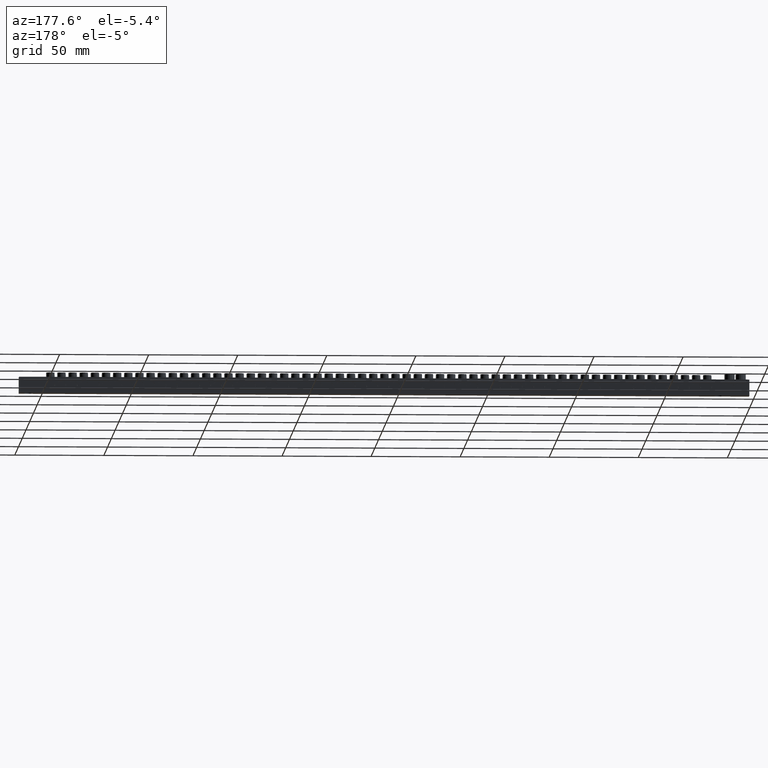
[diagram: clean part render]
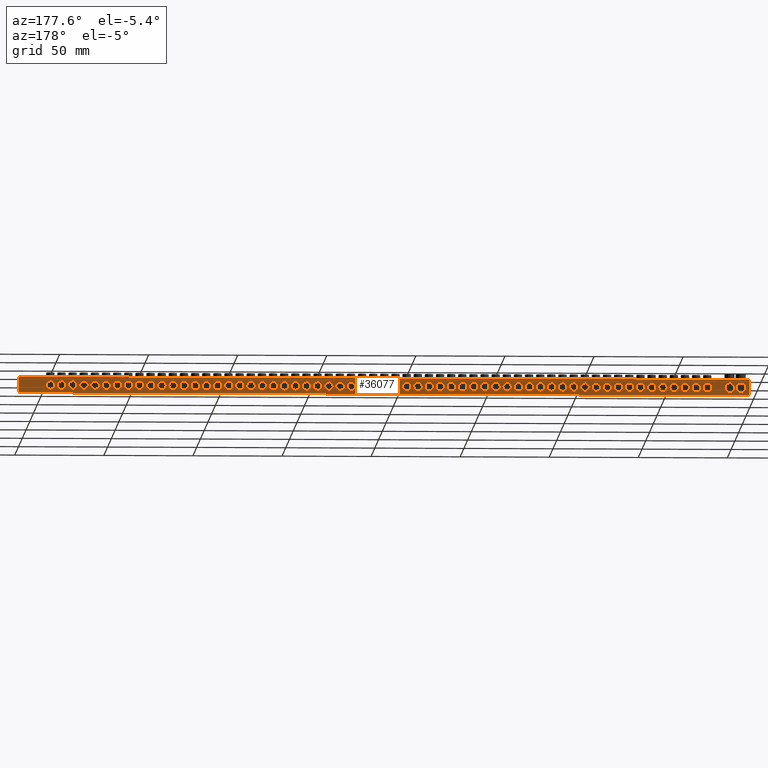
[diagram: same view with one face highlighted and labeled with its STEP entity id]
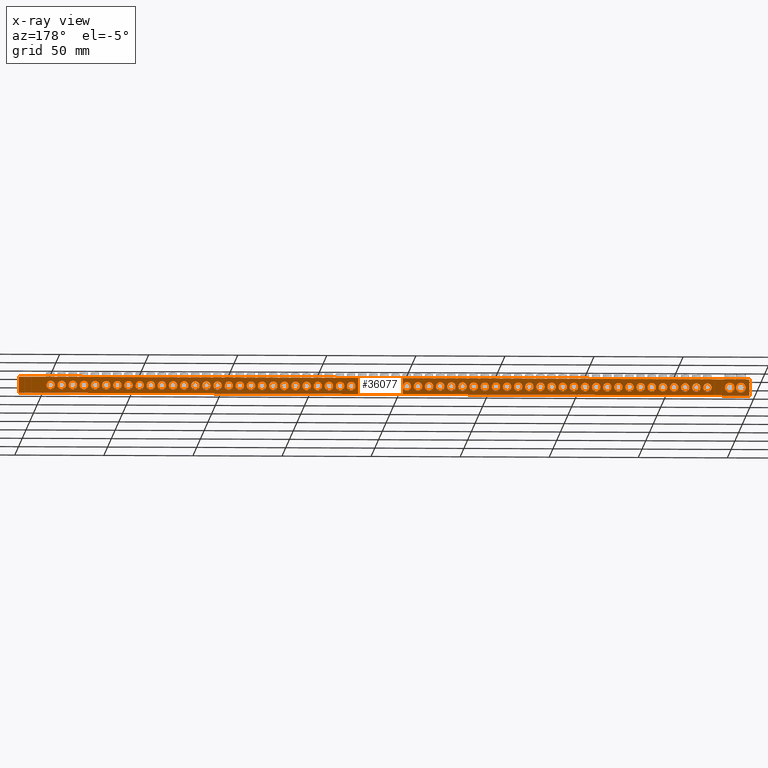
[diagram: x-ray of the same camera — body ghosted, the highlighted face saturated]
A machine part, auxiliary view. The second image highlights one B-rep face of the part: STEP entity #36077.
The next image is the same camera in x-ray: the body ghosted, the highlighted face saturated — about 0% of this face is hidden behind the body in this view.
In plain terms, the highlighted planar face has unit normal (0, -1, 0).
Its self-contained STEP definition (entity closure, byte-faithful):
#4851 = EDGE_LOOP ( 'NONE', ( #37168, #37104 ) ) ;
#4852 = EDGE_LOOP ( 'NONE', ( #37236, #37237 ) ) ;
#4853 = EDGE_LOOP ( 'NONE', ( #37109, #37088 ) ) ;
#4854 = EDGE_LOOP ( 'NONE', ( #37197, #37250 ) ) ;
#4855 = EDGE_LOOP ( 'NONE', ( #37189, #37239 ) ) ;
#4856 = EDGE_LOOP ( 'NONE', ( #37274, #37174 ) ) ;
#4857 = EDGE_LOOP ( 'NONE', ( #37163, #37198 ) ) ;
#4858 = EDGE_LOOP ( 'NONE', ( #37149, #37209 ) ) ;
#4860 = EDGE_LOOP ( 'NONE', ( #37254, #37241 ) ) ;
#4864 = EDGE_LOOP ( 'NONE', ( #37110, #37185 ) ) ;
#4865 = EDGE_LOOP ( 'NONE', ( #37194, #37196 ) ) ;
#4866 = EDGE_LOOP ( 'NONE', ( #37131, #37186 ) ) ;
#4869 = EDGE_LOOP ( 'NONE', ( #37165, #37221 ) ) ;
#4871 = EDGE_LOOP ( 'NONE', ( #37182, #37195 ) ) ;
#4873 = EDGE_LOOP ( 'NONE', ( #37100, #37091 ) ) ;
#4876 = EDGE_LOOP ( 'NONE', ( #37273, #37177 ) ) ;
#4877 = EDGE_LOOP ( 'NONE', ( #37225, #37271 ) ) ;
#4878 = EDGE_LOOP ( 'NONE', ( #37164, #37240 ) ) ;
#4879 = EDGE_LOOP ( 'NONE', ( #37275, #37255 ) ) ;
#4880 = EDGE_LOOP ( 'NONE', ( #37206, #37230 ) ) ;
#4881 = EDGE_LOOP ( 'NONE', ( #37176, #37246 ) ) ;
#4883 = EDGE_LOOP ( 'NONE', ( #37152, #37204 ) ) ;
#4885 = EDGE_LOOP ( 'NONE', ( #37170, #37154 ) ) ;
#4886 = EDGE_LOOP ( 'NONE', ( #37103, #37150 ) ) ;
#4890 = EDGE_LOOP ( 'NONE', ( #37123, #37113 ) ) ;
#4892 = EDGE_LOOP ( 'NONE', ( #37249, #37178 ) ) ;
#4893 = EDGE_LOOP ( 'NONE', ( #37252, #37158 ) ) ;
#4895 = EDGE_LOOP ( 'NONE', ( #37162, #37199 ) ) ;
#4896 = EDGE_LOOP ( 'NONE', ( #37187, #37210 ) ) ;
#4897 = EDGE_LOOP ( 'NONE', ( #37157, #37092 ) ) ;
#4898 = EDGE_LOOP ( 'NONE', ( #37264, #37263 ) ) ;
#4899 = EDGE_LOOP ( 'NONE', ( #37207, #37159 ) ) ;
#4900 = EDGE_LOOP ( 'NONE', ( #37161, #37222 ) ) ;
#4901 = EDGE_LOOP ( 'NONE', ( #37269, #37201 ) ) ;
#4904 = EDGE_LOOP ( 'NONE', ( #37101, #37191 ) ) ;
#4907 = EDGE_LOOP ( 'NONE', ( #37276, #37223 ) ) ;
#4912 = EDGE_LOOP ( 'NONE', ( #37253, #37251 ) ) ;
#4914 = EDGE_LOOP ( 'NONE', ( #37238, #37234 ) ) ;
#4915 = EDGE_LOOP ( 'NONE', ( #37333, #37340 ) ) ;
#4918 = EDGE_LOOP ( 'NONE', ( #37233, #37258 ) ) ;
#4923 = EDGE_LOOP ( 'NONE', ( #37120, #37132 ) ) ;
#4924 = EDGE_LOOP ( 'NONE', ( #37175, #37173 ) ) ;
#4926 = EDGE_LOOP ( 'NONE', ( #37166, #37188 ) ) ;
#4929 = EDGE_LOOP ( 'NONE', ( #37205, #37192 ) ) ;
#4933 = EDGE_LOOP ( 'NONE', ( #37265, #37217 ) ) ;
#4934 = EDGE_LOOP ( 'NONE', ( #37279, #37244 ) ) ;
#4941 = EDGE_LOOP ( 'NONE', ( #37220, #37267 ) ) ;
#4942 = EDGE_LOOP ( 'NONE', ( #37278, #37259 ) ) ;
#4943 = EDGE_LOOP ( 'NONE', ( #37242, #37266 ) ) ;
#4945 = EDGE_LOOP ( 'NONE', ( #37215, #37156 ) ) ;
#4946 = EDGE_LOOP ( 'NONE', ( #37193, #37232 ) ) ;
#4947 = EDGE_LOOP ( 'NONE', ( #37180, #37213 ) ) ;
#4948 = EDGE_LOOP ( 'NONE', ( #37211, #37208 ) ) ;
#4949 = EDGE_LOOP ( 'NONE', ( #37184, #37202 ) ) ;
#4951 = EDGE_LOOP ( 'NONE', ( #37228, #37231 ) ) ;
#4952 = EDGE_LOOP ( 'NONE', ( #37247, #37226 ) ) ;
#4953 = EDGE_LOOP ( 'NONE', ( #37270, #37235 ) ) ;
#4954 = EDGE_LOOP ( 'NONE', ( #37248, #37268, #37272, #37219 ) ) ;
#4958 = EDGE_LOOP ( 'NONE', ( #37277, #37216 ) ) ;
#4960 = EDGE_LOOP ( 'NONE', ( #37214, #37262 ) ) ;
#4962 = EDGE_LOOP ( 'NONE', ( #37097, #37105 ) ) ;
#4964 = EDGE_LOOP ( 'NONE', ( #37160, #37181 ) ) ;
#4966 = EDGE_LOOP ( 'NONE', ( #37256, #37285 ) ) ;
#5279 = VERTEX_POINT ( 'NONE', #25365 ) ;
#5310 = VERTEX_POINT ( 'NONE', #25428 ) ;
#5325 = VERTEX_POINT ( 'NONE', #25344 ) ;
#5345 = VERTEX_POINT ( 'NONE', #25511 ) ;
#8015 = FACE_BOUND ( 'NONE', #4858, .T. ) ;
#8016 = FACE_BOUND ( 'NONE', #4864, .T. ) ;
#8017 = FACE_BOUND ( 'NONE', #4878, .T. ) ;
#8018 = FACE_BOUND ( 'NONE', #4883, .T. ) ;
#8019 = FACE_BOUND ( 'NONE', #4898, .T. ) ;
#8021 = FACE_BOUND ( 'NONE', #4943, .T. ) ;
#8022 = FACE_BOUND ( 'NONE', #4857, .T. ) ;
#8023 = FACE_BOUND ( 'NONE', #4877, .T. ) ;
#8024 = FACE_BOUND ( 'NONE', #4852, .T. ) ;
#8025 = FACE_BOUND ( 'NONE', #4948, .T. ) ;
#8026 = FACE_BOUND ( 'NONE', #4855, .T. ) ;
#8027 = FACE_BOUND ( 'NONE', #4924, .T. ) ;
#8028 = FACE_BOUND ( 'NONE', #4900, .T. ) ;
#8029 = FACE_BOUND ( 'NONE', #4886, .T. ) ;
#8031 = FACE_BOUND ( 'NONE', #4949, .T. ) ;
#8032 = FACE_BOUND ( 'NONE', #4873, .T. ) ;
#8034 = FACE_BOUND ( 'NONE', #4899, .T. ) ;
#8035 = FACE_BOUND ( 'NONE', #4866, .T. ) ;
#8036 = FACE_BOUND ( 'NONE', #4876, .T. ) ;
#8037 = FACE_BOUND ( 'NONE', #4953, .T. ) ;
#8038 = FACE_BOUND ( 'NONE', #4893, .T. ) ;
#8040 = FACE_BOUND ( 'NONE', #4871, .T. ) ;
#8041 = FACE_BOUND ( 'NONE', #4856, .T. ) ;
#8042 = FACE_BOUND ( 'NONE', #4881, .T. ) ;
#8043 = FACE_BOUND ( 'NONE', #4907, .T. ) ;
#8044 = FACE_BOUND ( 'NONE', #4960, .T. ) ;
#8046 = FACE_BOUND ( 'NONE', #4946, .T. ) ;
#8047 = FACE_BOUND ( 'NONE', #4890, .T. ) ;
#8048 = FACE_BOUND ( 'NONE', #4962, .T. ) ;
#8049 = FACE_BOUND ( 'NONE', #4904, .T. ) ;
#8050 = FACE_BOUND ( 'NONE', #4853, .T. ) ;
#8052 = FACE_BOUND ( 'NONE', #4885, .T. ) ;
#8053 = FACE_BOUND ( 'NONE', #4896, .T. ) ;
#8054 = FACE_BOUND ( 'NONE', #4901, .T. ) ;
#8055 = FACE_BOUND ( 'NONE', #4897, .T. ) ;
#8056 = FACE_BOUND ( 'NONE', #4860, .T. ) ;
#8057 = FACE_BOUND ( 'NONE', #4879, .T. ) ;
#8058 = FACE_BOUND ( 'NONE', #4892, .T. ) ;
#8059 = FACE_BOUND ( 'NONE', #4964, .T. ) ;
#8060 = FACE_BOUND ( 'NONE', #4851, .T. ) ;
#8062 = FACE_BOUND ( 'NONE', #4951, .T. ) ;
#8063 = FACE_BOUND ( 'NONE', #4923, .T. ) ;
#8064 = FACE_BOUND ( 'NONE', #4933, .T. ) ;
#8065 = FACE_BOUND ( 'NONE', #4880, .T. ) ;
#8066 = FACE_BOUND ( 'NONE', #4854, .T. ) ;
#8067 = FACE_BOUND ( 'NONE', #4942, .T. ) ;
#8068 = FACE_BOUND ( 'NONE', #4947, .T. ) ;
#8069 = FACE_BOUND ( 'NONE', #4945, .T. ) ;
#8070 = FACE_BOUND ( 'NONE', #4934, .T. ) ;
#8071 = FACE_BOUND ( 'NONE', #4915, .T. ) ;
#8072 = FACE_BOUND ( 'NONE', #4926, .T. ) ;
#8073 = FACE_BOUND ( 'NONE', #4912, .T. ) ;
#8074 = FACE_BOUND ( 'NONE', #4865, .T. ) ;
#8076 = FACE_BOUND ( 'NONE', #4929, .T. ) ;
#8077 = FACE_BOUND ( 'NONE', #4895, .T. ) ;
#8078 = FACE_BOUND ( 'NONE', #4869, .T. ) ;
#8080 = FACE_BOUND ( 'NONE', #4941, .T. ) ;
#8087 = FACE_BOUND ( 'NONE', #4958, .T. ) ;
#8088 = FACE_BOUND ( 'NONE', #4914, .T. ) ;
#8091 = FACE_BOUND ( 'NONE', #4918, .T. ) ;
#8098 = DIRECTION ( 'NONE',  ( 2.112939678412676300E-018, -1.000000000000000000, 0.0000000000000000000 ) ) ;
#8103 = PLANE ( 'NONE',  #34277 ) ;
#8108 = FACE_BOUND ( 'NONE', #4966, .T. ) ;
#8109 = FACE_OUTER_BOUND ( 'NONE', #4954, .T. ) ;
#8113 = CARTESIAN_POINT ( 'NONE',  ( 0.0000000000000000000, 6.499999999999999100, 9.000000000000003600 ) ) ;
#8120 = FACE_BOUND ( 'NONE', #4952, .T. ) ;
#8126 = DIRECTION ( 'NONE',  ( 1.000000000000000000, 2.112939678412676300E-018, 0.0000000000000000000 ) ) ;
#12916 = DIRECTION ( 'NONE',  ( 0.0000000000000000000, 0.0000000000000000000, -1.000000000000000000 ) ) ;
#12919 = DIRECTION ( 'NONE',  ( 0.0000000000000000000, 1.000000000000000000, 0.0000000000000000000 ) ) ;
#12923 = CARTESIAN_POINT ( 'NONE',  ( 255.2500000000004800, 6.499999999999999100, 4.399999999999985300 ) ) ;
#12924 = DIRECTION ( 'NONE',  ( 0.0000000000000000000, 0.0000000000000000000, -1.000000000000000000 ) ) ;
#12943 = DIRECTION ( 'NONE',  ( 0.0000000000000000000, 1.000000000000000000, 0.0000000000000000000 ) ) ;
#12963 = DIRECTION ( 'NONE',  ( 0.0000000000000000000, 1.000000000000000000, 0.0000000000000000000 ) ) ;
#12964 = DIRECTION ( 'NONE',  ( 0.0000000000000000000, 1.000000000000000000, 0.0000000000000000000 ) ) ;
#12968 = CARTESIAN_POINT ( 'NONE',  ( 224.0000000000006500, 6.499999999999999100, 4.399999999999981700 ) ) ;
#12969 = DIRECTION ( 'NONE',  ( 0.0000000000000000000, 0.0000000000000000000, -1.000000000000000000 ) ) ;
#12972 = DIRECTION ( 'NONE',  ( 0.0000000000000000000, 1.000000000000000000, 0.0000000000000000000 ) ) ;
#12978 = DIRECTION ( 'NONE',  ( 0.0000000000000000000, 0.0000000000000000000, -1.000000000000000000 ) ) ;
#12979 = CARTESIAN_POINT ( 'NONE',  ( 149.0000000000008500, 6.499999999999999100, 4.399999999999976400 ) ) ;
#12980 = DIRECTION ( 'NONE',  ( 0.0000000000000000000, 0.0000000000000000000, -1.000000000000000000 ) ) ;
#12981 = CARTESIAN_POINT ( 'NONE',  ( 167.7500000000008000, 6.499999999999999100, 4.399999999999978200 ) ) ;
#12983 = DIRECTION ( 'NONE',  ( 0.0000000000000000000, 1.000000000000000000, 0.0000000000000000000 ) ) ;
#12987 = CARTESIAN_POINT ( 'NONE',  ( 180.2500000000007400, 6.499999999999999100, 4.399999999999978200 ) ) ;
#12990 = DIRECTION ( 'NONE',  ( 0.0000000000000000000, 0.0000000000000000000, -1.000000000000000000 ) ) ;
#13000 = DIRECTION ( 'NONE',  ( 0.0000000000000000000, 0.0000000000000000000, -1.000000000000000000 ) ) ;
#13002 = DIRECTION ( 'NONE',  ( 0.0000000000000000000, 1.000000000000000000, 0.0000000000000000000 ) ) ;
#13003 = CARTESIAN_POINT ( 'NONE',  ( 192.7500000000007700, 6.499999999999999100, 4.399999999999978200 ) ) ;
#13004 = DIRECTION ( 'NONE',  ( 0.0000000000000000000, 1.000000000000000000, 0.0000000000000000000 ) ) ;
#13008 = CARTESIAN_POINT ( 'NONE',  ( 274.0000000000004000, 6.499999999999999100, 4.399999999999987000 ) ) ;
#13009 = CARTESIAN_POINT ( 'NONE',  ( 249.0000000000005700, 6.499999999999999100, 4.399999999999984400 ) ) ;
#13010 = DIRECTION ( 'NONE',  ( 0.0000000000000000000, 1.000000000000000000, 0.0000000000000000000 ) ) ;
#13020 = DIRECTION ( 'NONE',  ( 0.0000000000000000000, 0.0000000000000000000, -1.000000000000000000 ) ) ;
#13023 = DIRECTION ( 'NONE',  ( 0.0000000000000000000, 0.0000000000000000000, -1.000000000000000000 ) ) ;
#13031 = DIRECTION ( 'NONE',  ( 0.0000000000000000000, 1.000000000000000000, 0.0000000000000000000 ) ) ;
#13037 = CARTESIAN_POINT ( 'NONE',  ( 105.2500000000010100, 6.499999999999999100, 4.399999999999970200 ) ) ;
#13046 = CARTESIAN_POINT ( 'NONE',  ( 111.5000000000009800, 6.499999999999999100, 4.399999999999971000 ) ) ;
#13047 = DIRECTION ( 'NONE',  ( 0.0000000000000000000, 1.000000000000000000, 0.0000000000000000000 ) ) ;
#13050 = DIRECTION ( 'NONE',  ( 0.0000000000000000000, 0.0000000000000000000, -1.000000000000000000 ) ) ;
#13051 = DIRECTION ( 'NONE',  ( 0.0000000000000000000, 0.0000000000000000000, -1.000000000000000000 ) ) ;
#13073 = CARTESIAN_POINT ( 'NONE',  ( 261.5000000000004500, 6.499999999999999100, 4.399999999999985300 ) ) ;
#13074 = DIRECTION ( 'NONE',  ( 0.0000000000000000000, 1.000000000000000000, 0.0000000000000000000 ) ) ;
#13078 = DIRECTION ( 'NONE',  ( 0.0000000000000000000, 0.0000000000000000000, -1.000000000000000000 ) ) ;
#13081 = CARTESIAN_POINT ( 'NONE',  ( 267.7500000000005700, 6.499999999999999100, 4.399999999999986100 ) ) ;
#13086 = DIRECTION ( 'NONE',  ( 0.0000000000000000000, 1.000000000000000000, 0.0000000000000000000 ) ) ;
#13090 = DIRECTION ( 'NONE',  ( 0.0000000000000000000, 0.0000000000000000000, -1.000000000000000000 ) ) ;
#13092 = CARTESIAN_POINT ( 'NONE',  ( 286.5000000000003400, 6.499999999999999100, 4.399999999999987900 ) ) ;
#13094 = CARTESIAN_POINT ( 'NONE',  ( 199.0000000000006800, 6.499999999999999100, 4.399999999999979000 ) ) ;
#13096 = DIRECTION ( 'NONE',  ( 0.0000000000000000000, 0.0000000000000000000, -1.000000000000000000 ) ) ;
#13104 = CARTESIAN_POINT ( 'NONE',  ( 124.0000000000009400, 6.499999999999999100, 4.399999999999971900 ) ) ;
#13115 = DIRECTION ( 'NONE',  ( 0.0000000000000000000, 1.000000000000000000, 0.0000000000000000000 ) ) ;
#13116 = DIRECTION ( 'NONE',  ( 0.0000000000000000000, 1.000000000000000000, 0.0000000000000000000 ) ) ;
#13119 = DIRECTION ( 'NONE',  ( 0.0000000000000000000, 1.000000000000000000, 0.0000000000000000000 ) ) ;
#13122 = CARTESIAN_POINT ( 'NONE',  ( 142.7500000000008800, 6.499999999999999100, 4.399999999999973700 ) ) ;
#13124 = DIRECTION ( 'NONE',  ( 0.0000000000000000000, 0.0000000000000000000, -1.000000000000000000 ) ) ;
#13128 = DIRECTION ( 'NONE',  ( 0.0000000000000000000, 1.000000000000000000, 0.0000000000000000000 ) ) ;
#13129 = DIRECTION ( 'NONE',  ( 0.0000000000000000000, 0.0000000000000000000, -1.000000000000000000 ) ) ;
#13130 = DIRECTION ( 'NONE',  ( 0.0000000000000000000, 0.0000000000000000000, -1.000000000000000000 ) ) ;
#13139 = DIRECTION ( 'NONE',  ( 0.0000000000000000000, 0.0000000000000000000, -1.000000000000000000 ) ) ;
#13141 = CARTESIAN_POINT ( 'NONE',  ( 292.7500000000003400, 6.499999999999999100, 4.399999999999988800 ) ) ;
#13144 = DIRECTION ( 'NONE',  ( 0.0000000000000000000, 1.000000000000000000, 0.0000000000000000000 ) ) ;
#13148 = DIRECTION ( 'NONE',  ( 0.0000000000000000000, 1.000000000000000000, 0.0000000000000000000 ) ) ;
#13149 = DIRECTION ( 'NONE',  ( 0.0000000000000000000, 0.0000000000000000000, -1.000000000000000000 ) ) ;
#13157 = CARTESIAN_POINT ( 'NONE',  ( 155.2500000000008200, 6.499999999999999100, 4.399999999999977300 ) ) ;
#13163 = DIRECTION ( 'NONE',  ( 0.0000000000000000000, 1.000000000000000000, 0.0000000000000000000 ) ) ;
#13164 = DIRECTION ( 'NONE',  ( 0.0000000000000000000, 0.0000000000000000000, -1.000000000000000000 ) ) ;
#13170 = CARTESIAN_POINT ( 'NONE',  ( 305.2500000000002800, 6.499999999999999100, 4.399999999999990600 ) ) ;
#13175 = CARTESIAN_POINT ( 'NONE',  ( 374.0000000000000600, 6.500000000000001800, 4.399999999999997700 ) ) ;
#13183 = DIRECTION ( 'NONE',  ( 0.0000000000000000000, 1.000000000000000000, 0.0000000000000000000 ) ) ;
#13186 = DIRECTION ( 'NONE',  ( 0.0000000000000000000, 0.0000000000000000000, -1.000000000000000000 ) ) ;
#13189 = DIRECTION ( 'NONE',  ( 0.0000000000000000000, 1.000000000000000000, 0.0000000000000000000 ) ) ;
#13191 = DIRECTION ( 'NONE',  ( 0.0000000000000000000, 0.0000000000000000000, -1.000000000000000000 ) ) ;
#13192 = DIRECTION ( 'NONE',  ( 0.0000000000000000000, 1.000000000000000000, 0.0000000000000000000 ) ) ;
#13193 = CARTESIAN_POINT ( 'NONE',  ( 211.5000000000006300, 6.499999999999999100, 4.399999999999980800 ) ) ;
#13200 = CARTESIAN_POINT ( 'NONE',  ( 317.7500000000002300, 6.500000000000001800, 4.399999999999991500 ) ) ;
#13202 = DIRECTION ( 'NONE',  ( 0.0000000000000000000, 0.0000000000000000000, -1.000000000000000000 ) ) ;
#13225 = DIRECTION ( 'NONE',  ( 0.0000000000000000000, 0.0000000000000000000, -1.000000000000000000 ) ) ;
#13233 = CARTESIAN_POINT ( 'NONE',  ( 367.7500000000000600, 6.500000000000001800, 4.399999999999996800 ) ) ;
#13234 = DIRECTION ( 'NONE',  ( 0.0000000000000000000, 1.000000000000000000, 0.0000000000000000000 ) ) ;
#13236 = DIRECTION ( 'NONE',  ( 0.0000000000000000000, 0.0000000000000000000, -1.000000000000000000 ) ) ;
#13239 = DIRECTION ( 'NONE',  ( 0.0000000000000000000, 1.000000000000000000, 0.0000000000000000000 ) ) ;
#13240 = DIRECTION ( 'NONE',  ( 0.0000000000000000000, 0.0000000000000000000, -1.000000000000000000 ) ) ;
#13241 = DIRECTION ( 'NONE',  ( 0.0000000000000000000, 1.000000000000000000, 0.0000000000000000000 ) ) ;
#13244 = CARTESIAN_POINT ( 'NONE',  ( 230.2500000000005700, 6.499999999999999100, 4.399999999999982600 ) ) ;
#13247 = DIRECTION ( 'NONE',  ( 0.0000000000000000000, 1.000000000000000000, 0.0000000000000000000 ) ) ;
#13248 = DIRECTION ( 'NONE',  ( 0.0000000000000000000, 0.0000000000000000000, -1.000000000000000000 ) ) ;
#13255 = CARTESIAN_POINT ( 'NONE',  ( 280.2500000000004000, 6.499999999999999100, 4.399999999999987900 ) ) ;
#13259 = CARTESIAN_POINT ( 'NONE',  ( 217.7500000000006000, 6.499999999999999100, 4.399999999999980800 ) ) ;
#13270 = DIRECTION ( 'NONE',  ( 0.0000000000000000000, 1.000000000000000000, 0.0000000000000000000 ) ) ;
#13272 = DIRECTION ( 'NONE',  ( 0.0000000000000000000, 0.0000000000000000000, -1.000000000000000000 ) ) ;
#13273 = CARTESIAN_POINT ( 'NONE',  ( 330.2500000000002300, 6.500000000000001800, 4.399999999999993200 ) ) ;
#13277 = DIRECTION ( 'NONE',  ( 0.0000000000000000000, 0.0000000000000000000, -1.000000000000000000 ) ) ;
#13280 = CARTESIAN_POINT ( 'NONE',  ( 236.5000000000005400, 6.499999999999999100, 4.399999999999983500 ) ) ;
#13283 = CARTESIAN_POINT ( 'NONE',  ( 205.2500000000006500, 6.499999999999999100, 4.399999999999979900 ) ) ;
#13286 = DIRECTION ( 'NONE',  ( 0.0000000000000000000, 1.000000000000000000, 0.0000000000000000000 ) ) ;
#13287 = DIRECTION ( 'NONE',  ( 0.0000000000000000000, 1.000000000000000000, 0.0000000000000000000 ) ) ;
#13293 = DIRECTION ( 'NONE',  ( 0.0000000000000000000, 0.0000000000000000000, -1.000000000000000000 ) ) ;
#13296 = CARTESIAN_POINT ( 'NONE',  ( 342.7500000000001700, 6.500000000000001800, 4.399999999999994100 ) ) ;
#13309 = DIRECTION ( 'NONE',  ( 0.0000000000000000000, 1.000000000000000000, 0.0000000000000000000 ) ) ;
#13311 = CARTESIAN_POINT ( 'NONE',  ( 242.7500000000005100, 6.499999999999999100, 4.399999999999983500 ) ) ;
#13313 = DIRECTION ( 'NONE',  ( 0.0000000000000000000, 0.0000000000000000000, -1.000000000000000000 ) ) ;
#13326 = DIRECTION ( 'NONE',  ( 0.0000000000000000000, 0.0000000000000000000, -1.000000000000000000 ) ) ;
#13335 = DIRECTION ( 'NONE',  ( 0.0000000000000000000, 1.000000000000000000, 0.0000000000000000000 ) ) ;
#13351 = DIRECTION ( 'NONE',  ( 0.0000000000000000000, 0.0000000000000000000, -1.000000000000000000 ) ) ;
#13353 = DIRECTION ( 'NONE',  ( 0.0000000000000000000, 0.0000000000000000000, -1.000000000000000000 ) ) ;
#13366 = CARTESIAN_POINT ( 'NONE',  ( 336.5000000000001700, 6.500000000000001800, 4.399999999999993200 ) ) ;
#13371 = DIRECTION ( 'NONE',  ( 0.0000000000000000000, 1.000000000000000000, 0.0000000000000000000 ) ) ;
#13372 = DIRECTION ( 'NONE',  ( 0.0000000000000000000, 1.000000000000000000, 0.0000000000000000000 ) ) ;
#13375 = CARTESIAN_POINT ( 'NONE',  ( 349.0000000000002300, 6.500000000000001800, 4.399999999999995000 ) ) ;
#13380 = DIRECTION ( 'NONE',  ( 0.0000000000000000000, 1.000000000000000000, 0.0000000000000000000 ) ) ;
#13381 = DIRECTION ( 'NONE',  ( 0.0000000000000000000, 0.0000000000000000000, -1.000000000000000000 ) ) ;
#13385 = CARTESIAN_POINT ( 'NONE',  ( 11.50000000000000000, 6.499999999999999100, 4.399999999999999500 ) ) ;
#13390 = DIRECTION ( 'NONE',  ( 0.0000000000000000000, 1.000000000000000000, 0.0000000000000000000 ) ) ;
#13394 = CARTESIAN_POINT ( 'NONE',  ( 386.5000000000000000, 6.500000000000001800, 4.399999999999998600 ) ) ;
#13410 = DIRECTION ( 'NONE',  ( 0.0000000000000000000, 0.0000000000000000000, -1.000000000000000000 ) ) ;
#13419 = CARTESIAN_POINT ( 'NONE',  ( 5.250000000000000000, 6.499999999999999100, 4.399999999999999500 ) ) ;
#13435 = DIRECTION ( 'NONE',  ( 0.0000000000000000000, 0.0000000000000000000, -1.000000000000000000 ) ) ;
#13438 = CARTESIAN_POINT ( 'NONE',  ( 311.5000000000002800, 6.500000000000001800, 4.399999999999990600 ) ) ;
#13440 = DIRECTION ( 'NONE',  ( 0.0000000000000000000, 1.000000000000000000, 0.0000000000000000000 ) ) ;
#13442 = CARTESIAN_POINT ( 'NONE',  ( 299.0000000000003400, 6.499999999999999100, 4.399999999999989700 ) ) ;
#13443 = DIRECTION ( 'NONE',  ( 0.0000000000000000000, 1.000000000000000000, 0.0000000000000000000 ) ) ;
#13450 = CARTESIAN_POINT ( 'NONE',  ( 361.5000000000001100, 6.500000000000001800, 4.399999999999995900 ) ) ;
#13451 = DIRECTION ( 'NONE',  ( 0.0000000000000000000, 1.000000000000000000, 0.0000000000000000000 ) ) ;
#13454 = DIRECTION ( 'NONE',  ( 0.0000000000000000000, 0.0000000000000000000, -1.000000000000000000 ) ) ;
#13461 = CARTESIAN_POINT ( 'NONE',  ( 324.0000000000002300, 6.500000000000001800, 4.399999999999992400 ) ) ;
#13462 = DIRECTION ( 'NONE',  ( 0.0000000000000000000, 0.0000000000000000000, -1.000000000000000000 ) ) ;
#13464 = DIRECTION ( 'NONE',  ( 0.0000000000000000000, 1.000000000000000000, 0.0000000000000000000 ) ) ;
#13465 = CARTESIAN_POINT ( 'NONE',  ( 355.2500000000001100, 6.500000000000001800, 4.399999999999995900 ) ) ;
#13466 = DIRECTION ( 'NONE',  ( 0.0000000000000000000, 0.0000000000000000000, -1.000000000000000000 ) ) ;
#13467 = DIRECTION ( 'NONE',  ( 0.0000000000000000000, 0.0000000000000000000, -1.000000000000000000 ) ) ;
#13469 = DIRECTION ( 'NONE',  ( 0.0000000000000000000, 0.0000000000000000000, -1.000000000000000000 ) ) ;
#13473 = DIRECTION ( 'NONE',  ( 0.0000000000000000000, 1.000000000000000000, 0.0000000000000000000 ) ) ;
#13475 = DIRECTION ( 'NONE',  ( 0.0000000000000000000, 1.000000000000000000, 0.0000000000000000000 ) ) ;
#13486 = CARTESIAN_POINT ( 'NONE',  ( 380.2500000000001700, 6.500000000000001800, 4.399999999999998600 ) ) ;
#13489 = DIRECTION ( 'NONE',  ( 0.0000000000000000000, 0.0000000000000000000, -1.000000000000000000 ) ) ;
#13513 = DIRECTION ( 'NONE',  ( 0.0000000000000000000, 1.000000000000000000, 0.0000000000000000000 ) ) ;
#13538 = DIRECTION ( 'NONE',  ( 0.0000000000000000000, 0.0000000000000000000, -1.000000000000000000 ) ) ;
#13547 = CARTESIAN_POINT ( 'NONE',  ( 392.7500000000000000, 6.500000000000001800, 4.399999999999999500 ) ) ;
#13554 = DIRECTION ( 'NONE',  ( 0.0000000000000000000, 1.000000000000000000, 0.0000000000000000000 ) ) ;
#13675 = DIRECTION ( 'NONE',  ( 0.0000000000000000000, 1.000000000000000000, 0.0000000000000000000 ) ) ;
#13684 = DIRECTION ( 'NONE',  ( 0.0000000000000000000, 0.0000000000000000000, -1.000000000000000000 ) ) ;
#13686 = CARTESIAN_POINT ( 'NONE',  ( 36.50000000000125100, 6.499999999999999100, 4.399999999999963100 ) ) ;
#13692 = DIRECTION ( 'NONE',  ( 0.0000000000000000000, 0.0000000000000000000, -1.000000000000000000 ) ) ;
#13700 = DIRECTION ( 'NONE',  ( 0.0000000000000000000, 0.0000000000000000000, -1.000000000000000000 ) ) ;
#13701 = CARTESIAN_POINT ( 'NONE',  ( 136.5000000000009700, 6.499999999999999100, 4.399999999999973700 ) ) ;
#13704 = DIRECTION ( 'NONE',  ( 0.0000000000000000000, 1.000000000000000000, 0.0000000000000000000 ) ) ;
#13705 = DIRECTION ( 'NONE',  ( 0.0000000000000000000, 1.000000000000000000, 0.0000000000000000000 ) ) ;
#13710 = DIRECTION ( 'NONE',  ( 0.0000000000000000000, 0.0000000000000000000, -1.000000000000000000 ) ) ;
#13716 = CARTESIAN_POINT ( 'NONE',  ( 161.5000000000008000, 6.499999999999999100, 4.399999999999978200 ) ) ;
#13721 = DIRECTION ( 'NONE',  ( 0.0000000000000000000, 0.0000000000000000000, -1.000000000000000000 ) ) ;
#13723 = DIRECTION ( 'NONE',  ( 0.0000000000000000000, 1.000000000000000000, 0.0000000000000000000 ) ) ;
#13724 = DIRECTION ( 'NONE',  ( 0.0000000000000000000, 1.000000000000000000, 0.0000000000000000000 ) ) ;
#13726 = CARTESIAN_POINT ( 'NONE',  ( 80.25000000000109400, 6.499999999999999100, 4.399999999999967500 ) ) ;
#13728 = CARTESIAN_POINT ( 'NONE',  ( 61.50000000000116500, 6.499999999999999100, 4.399999999999965700 ) ) ;
#13735 = CARTESIAN_POINT ( 'NONE',  ( 186.5000000000007100, 6.499999999999999100, 4.399999999999978200 ) ) ;
#13738 = DIRECTION ( 'NONE',  ( 0.0000000000000000000, 1.000000000000000000, 0.0000000000000000000 ) ) ;
#13743 = CARTESIAN_POINT ( 'NONE',  ( 30.25000000000127500, 6.499999999999999100, 4.399999999999962200 ) ) ;
#13745 = DIRECTION ( 'NONE',  ( 0.0000000000000000000, 1.000000000000000000, 0.0000000000000000000 ) ) ;
#13749 = DIRECTION ( 'NONE',  ( 0.0000000000000000000, 0.0000000000000000000, -1.000000000000000000 ) ) ;
#13756 = CARTESIAN_POINT ( 'NONE',  ( 117.7500000000009700, 6.499999999999999100, 4.399999999999971000 ) ) ;
#13758 = DIRECTION ( 'NONE',  ( 0.0000000000000000000, 1.000000000000000000, 0.0000000000000000000 ) ) ;
#13762 = DIRECTION ( 'NONE',  ( 0.0000000000000000000, 0.0000000000000000000, -1.000000000000000000 ) ) ;
#13767 = DIRECTION ( 'NONE',  ( 0.0000000000000000000, 0.0000000000000000000, -1.000000000000000000 ) ) ;
#13779 = DIRECTION ( 'NONE',  ( 0.0000000000000000000, 0.0000000000000000000, -1.000000000000000000 ) ) ;
#13781 = DIRECTION ( 'NONE',  ( 0.0000000000000000000, 1.000000000000000000, 0.0000000000000000000 ) ) ;
#13783 = DIRECTION ( 'NONE',  ( 0.0000000000000000000, 0.0000000000000000000, -1.000000000000000000 ) ) ;
#13787 = CARTESIAN_POINT ( 'NONE',  ( 86.50000000000108000, 6.499999999999999100, 4.399999999999968400 ) ) ;
#13788 = DIRECTION ( 'NONE',  ( 0.0000000000000000000, 1.000000000000000000, 0.0000000000000000000 ) ) ;
#13792 = DIRECTION ( 'NONE',  ( 0.0000000000000000000, 1.000000000000000000, 0.0000000000000000000 ) ) ;
#13794 = CARTESIAN_POINT ( 'NONE',  ( 24.00000000000129700, 6.499999999999999100, 4.399999999999961300 ) ) ;
#13796 = DIRECTION ( 'NONE',  ( 0.0000000000000000000, 0.0000000000000000000, -1.000000000000000000 ) ) ;
#13799 = DIRECTION ( 'NONE',  ( 0.0000000000000000000, 1.000000000000000000, 0.0000000000000000000 ) ) ;
#13800 = CARTESIAN_POINT ( 'NONE',  ( 92.75000000000105200, 6.499999999999999100, 4.399999999999969300 ) ) ;
#13805 = DIRECTION ( 'NONE',  ( 0.0000000000000000000, 0.0000000000000000000, -1.000000000000000000 ) ) ;
#13811 = CARTESIAN_POINT ( 'NONE',  ( 174.0000000000007700, 6.499999999999999100, 4.399999999999978200 ) ) ;
#13824 = CARTESIAN_POINT ( 'NONE',  ( 55.25000000000118700, 6.499999999999999100, 4.399999999999964800 ) ) ;
#13825 = CARTESIAN_POINT ( 'NONE',  ( 130.2500000000009100, 6.499999999999999100, 4.399999999999972800 ) ) ;
#13827 = DIRECTION ( 'NONE',  ( 0.0000000000000000000, 1.000000000000000000, 0.0000000000000000000 ) ) ;
#13828 = DIRECTION ( 'NONE',  ( 0.0000000000000000000, 0.0000000000000000000, -1.000000000000000000 ) ) ;
#15867 = EDGE_CURVE ( 'NONE', #19610, #19642, #17773, .T. ) ;
#15868 = EDGE_CURVE ( 'NONE', #19618, #19620, #17774, .T. ) ;
#15871 = EDGE_CURVE ( 'NONE', #19640, #19625, #17778, .T. ) ;
#15872 = EDGE_CURVE ( 'NONE', #20856, #20869, #17789, .T. ) ;
#15897 = EDGE_CURVE ( 'NONE', #20867, #20876, #16703, .T. ) ;
#15898 = EDGE_CURVE ( 'NONE', #19624, #19626, #16704, .T. ) ;
#15904 = EDGE_CURVE ( 'NONE', #20786, #20782, #16665, .T. ) ;
#15908 = EDGE_CURVE ( 'NONE', #20859, #20840, #16738, .T. ) ;
#15909 = EDGE_CURVE ( 'NONE', #20824, #20851, #16719, .T. ) ;
#15912 = EDGE_CURVE ( 'NONE', #20811, #20714, #16749, .T. ) ;
#15919 = EDGE_CURVE ( 'NONE', #20864, #20842, #16772, .T. ) ;
#15920 = EDGE_CURVE ( 'NONE', #20844, #20784, #16761, .T. ) ;
#15923 = EDGE_CURVE ( 'NONE', #20781, #20804, #16723, .T. ) ;
#15924 = EDGE_CURVE ( 'NONE', #20724, #20744, #16740, .T. ) ;
#15925 = EDGE_CURVE ( 'NONE', #20828, #20732, #16765, .T. ) ;
#15926 = EDGE_CURVE ( 'NONE', #5325, #5345, #27099, .T. ) ;
#15927 = EDGE_CURVE ( 'NONE', #20837, #20760, #16731, .T. ) ;
#15929 = EDGE_CURVE ( 'NONE', #20728, #20689, #16755, .T. ) ;
#15930 = EDGE_CURVE ( 'NONE', #20698, #20666, #16748, .T. ) ;
#15931 = EDGE_CURVE ( 'NONE', #20656, #20700, #16733, .T. ) ;
#15932 = EDGE_CURVE ( 'NONE', #5279, #5325, #27140, .T. ) ;
#15933 = EDGE_CURVE ( 'NONE', #20720, #20713, #16713, .T. ) ;
#15935 = EDGE_CURVE ( 'NONE', #20819, #20780, #16764, .T. ) ;
#15936 = EDGE_CURVE ( 'NONE', #20771, #20667, #16716, .T. ) ;
#15937 = EDGE_CURVE ( 'NONE', #5345, #5310, #27144, .T. ) ;
#15938 = EDGE_CURVE ( 'NONE', #19605, #20838, #16753, .T. ) ;
#15939 = EDGE_CURVE ( 'NONE', #20711, #20802, #16732, .T. ) ;
#15940 = EDGE_CURVE ( 'NONE', #20652, #20756, #16747, .T. ) ;
#15941 = EDGE_CURVE ( 'NONE', #20694, #20733, #16779, .T. ) ;
#15942 = EDGE_CURVE ( 'NONE', #20650, #20632, #16827, .T. ) ;
#15943 = EDGE_CURVE ( 'NONE', #20709, #20754, #16804, .T. ) ;
#15944 = EDGE_CURVE ( 'NONE', #20691, #20675, #16818, .T. ) ;
#15945 = EDGE_CURVE ( 'NONE', #20866, #20776, #16816, .T. ) ;
#15946 = EDGE_CURVE ( 'NONE', #20779, #20825, #16813, .T. ) ;
#15948 = EDGE_CURVE ( 'NONE', #20704, #20770, #16801, .T. ) ;
#15949 = EDGE_CURVE ( 'NONE', #20812, #20731, #16800, .T. ) ;
#15950 = EDGE_CURVE ( 'NONE', #20777, #20767, #16824, .T. ) ;
#15951 = EDGE_CURVE ( 'NONE', #20849, #20878, #16839, .T. ) ;
#15952 = EDGE_CURVE ( 'NONE', #20736, #20805, #16828, .T. ) ;
#15953 = EDGE_CURVE ( 'NONE', #20855, #20833, #16825, .T. ) ;
#15954 = EDGE_CURVE ( 'NONE', #20877, #20806, #16810, .T. ) ;
#15956 = EDGE_CURVE ( 'NONE', #19646, #19635, #16815, .T. ) ;
#15957 = EDGE_CURVE ( 'NONE', #20850, #20880, #16821, .T. ) ;
#15958 = EDGE_CURVE ( 'NONE', #20710, #20735, #16835, .T. ) ;
#15960 = EDGE_CURVE ( 'NONE', #20772, #20769, #16777, .T. ) ;
#15962 = EDGE_CURVE ( 'NONE', #20868, #20794, #16809, .T. ) ;
#15963 = EDGE_CURVE ( 'NONE', #20801, #20740, #16793, .T. ) ;
#15964 = EDGE_CURVE ( 'NONE', #20729, #20671, #16786, .T. ) ;
#15965 = EDGE_CURVE ( 'NONE', #20848, #20778, #16796, .T. ) ;
#15966 = EDGE_CURVE ( 'NONE', #20702, #20674, #16778, .T. ) ;
#15967 = EDGE_CURVE ( 'NONE', #20817, #20816, #16808, .T. ) ;
#15968 = EDGE_CURVE ( 'NONE', #20723, #20814, #16782, .T. ) ;
#15969 = EDGE_CURVE ( 'NONE', #20705, #20757, #16823, .T. ) ;
#15970 = EDGE_CURVE ( 'NONE', #20783, #20758, #16788, .T. ) ;
#15971 = EDGE_CURVE ( 'NONE', #20831, #20741, #16787, .T. ) ;
#15972 = EDGE_CURVE ( 'NONE', #20669, #20664, #16802, .T. ) ;
#15973 = EDGE_CURVE ( 'NONE', #20703, #20646, #16875, .T. ) ;
#15974 = EDGE_CURVE ( 'NONE', #20685, #20661, #16854, .T. ) ;
#15976 = EDGE_CURVE ( 'NONE', #20699, #20750, #16888, .T. ) ;
#15977 = EDGE_CURVE ( 'NONE', #20747, #20688, #16883, .T. ) ;
#15978 = EDGE_CURVE ( 'NONE', #20788, #20737, #16895, .T. ) ;
#16021 = EDGE_CURVE ( 'NONE', #20695, #20696, #16847, .T. ) ;
#16025 = EDGE_CURVE ( 'NONE', #5310, #5279, #26374, .T. ) ;
#16031 = EDGE_CURVE ( 'NONE', #20687, #20762, #16945, .T. ) ;
#16040 = EDGE_CURVE ( 'NONE', #20746, #20653, #16912, .T. ) ;
#16042 = EDGE_CURVE ( 'NONE', #20676, #20672, #16947, .T. ) ;
#16654 = AXIS2_PLACEMENT_3D ( 'NONE', #31117, #31110, #31096 ) ;
#16658 = AXIS2_PLACEMENT_3D ( 'NONE', #30064, #30280, #30337 ) ;
#16665 = CIRCLE ( 'NONE', #16658, 2.400000000000028300 ) ;
#16686 = AXIS2_PLACEMENT_3D ( 'NONE', #31084, #31091, #31119 ) ;
#16703 = CIRCLE ( 'NONE', #16654, 2.400000000000028300 ) ;
#16704 = CIRCLE ( 'NONE', #16686, 2.400000000000028300 ) ;
#16712 = VECTOR ( 'NONE', #27141, 1000.000000000000000 ) ;
#16713 = CIRCLE ( 'NONE', #16736, 2.400000000000031000 ) ;
#16715 = AXIS2_PLACEMENT_3D ( 'NONE', #27105, #27132, #27107 ) ;
#16716 = CIRCLE ( 'NONE', #16725, 2.400000000000029700 ) ;
#16719 = CIRCLE ( 'NONE', #16721, 2.399999999999970200 ) ;
#16721 = AXIS2_PLACEMENT_3D ( 'NONE', #27038, #27042, #27030 ) ;
#16723 = CIRCLE ( 'NONE', #16724, 2.400000000000028300 ) ;
#16724 = AXIS2_PLACEMENT_3D ( 'NONE', #27072, #27078, #27068 ) ;
#16725 = AXIS2_PLACEMENT_3D ( 'NONE', #27104, #27134, #27136 ) ;
#16726 = AXIS2_PLACEMENT_3D ( 'NONE', #27079, #27088, #27097 ) ;
#16730 = AXIS2_PLACEMENT_3D ( 'NONE', #27081, #27094, #27093 ) ;
#16731 = CIRCLE ( 'NONE', #16726, 2.400000000000031000 ) ;
#16732 = CIRCLE ( 'NONE', #16743, 2.400000000000031000 ) ;
#16733 = CIRCLE ( 'NONE', #16773, 2.400000000000031000 ) ;
#16734 = VECTOR ( 'NONE', #27117, 1000.000000000000000 ) ;
#16735 = AXIS2_PLACEMENT_3D ( 'NONE', #27115, #27145, #27116 ) ;
#16736 = AXIS2_PLACEMENT_3D ( 'NONE', #27129, #27114, #27142 ) ;
#16738 = CIRCLE ( 'NONE', #16757, 2.400000000000028300 ) ;
#16740 = CIRCLE ( 'NONE', #16763, 2.400000000000029700 ) ;
#16741 = AXIS2_PLACEMENT_3D ( 'NONE', #27070, #27073, #27096 ) ;
#16743 = AXIS2_PLACEMENT_3D ( 'NONE', #27118, #27103, #27108 ) ;
#16747 = CIRCLE ( 'NONE', #16803, 2.400000000000029700 ) ;
#16748 = CIRCLE ( 'NONE', #16767, 2.400000000000026100 ) ;
#16749 = CIRCLE ( 'NONE', #16760, 2.400000000000028300 ) ;
#16750 = AXIS2_PLACEMENT_3D ( 'NONE', #27065, #27091, #27092 ) ;
#16753 = CIRCLE ( 'NONE', #16735, 2.400000000000028300 ) ;
#16755 = CIRCLE ( 'NONE', #16771, 2.400000000000029700 ) ;
#16757 = AXIS2_PLACEMENT_3D ( 'NONE', #27028, #27062, #27031 ) ;
#16760 = AXIS2_PLACEMENT_3D ( 'NONE', #27046, #27055, #27051 ) ;
#16761 = CIRCLE ( 'NONE', #16750, 2.399999999999970200 ) ;
#16763 = AXIS2_PLACEMENT_3D ( 'NONE', #27069, #27064, #27085 ) ;
#16764 = CIRCLE ( 'NONE', #16715, 2.400000000000028300 ) ;
#16765 = CIRCLE ( 'NONE', #16741, 2.400000000000031000 ) ;
#16767 = AXIS2_PLACEMENT_3D ( 'NONE', #27106, #27138, #27130 ) ;
#16768 = VECTOR ( 'NONE', #27083, 1000.000000000000000 ) ;
#16771 = AXIS2_PLACEMENT_3D ( 'NONE', #27080, #27076, #27086 ) ;
#16772 = CIRCLE ( 'NONE', #16730, 2.400000000000028300 ) ;
#16773 = AXIS2_PLACEMENT_3D ( 'NONE', #27139, #27119, #27120 ) ;
#16776 = AXIS2_PLACEMENT_3D ( 'NONE', #27166, #27160, #27146 ) ;
#16777 = CIRCLE ( 'NONE', #16831, 2.400000000000031000 ) ;
#16778 = CIRCLE ( 'NONE', #16833, 2.400000000000029700 ) ;
#16779 = CIRCLE ( 'NONE', #16837, 2.400000000000029700 ) ;
#16781 = AXIS2_PLACEMENT_3D ( 'NONE', #27220, #27221, #27245 ) ;
#16782 = CIRCLE ( 'NONE', #16783, 2.400000000000031000 ) ;
#16783 = AXIS2_PLACEMENT_3D ( 'NONE', #27214, #27216, #27219 ) ;
#16785 = AXIS2_PLACEMENT_3D ( 'NONE', #27137, #27123, #27126 ) ;
#16786 = CIRCLE ( 'NONE', #16822, 2.400000000000031000 ) ;
#16787 = CIRCLE ( 'NONE', #16799, 2.399999999999970200 ) ;
#16788 = CIRCLE ( 'NONE', #16792, 2.400000000000031000 ) ;
#16789 = AXIS2_PLACEMENT_3D ( 'NONE', #27189, #27194, #27208 ) ;
#16790 = AXIS2_PLACEMENT_3D ( 'NONE', #27172, #27211, #27195 ) ;
#16791 = AXIS2_PLACEMENT_3D ( 'NONE', #27182, #27177, #27180 ) ;
#16792 = AXIS2_PLACEMENT_3D ( 'NONE', #27243, #27251, #27259 ) ;
#16793 = CIRCLE ( 'NONE', #16789, 2.400000000000031000 ) ;
#16796 = CIRCLE ( 'NONE', #16798, 2.400000000000028300 ) ;
#16797 = AXIS2_PLACEMENT_3D ( 'NONE', #27162, #27170, #27153 ) ;
#16798 = AXIS2_PLACEMENT_3D ( 'NONE', #27196, #27201, #27191 ) ;
#16799 = AXIS2_PLACEMENT_3D ( 'NONE', #27252, #27260, #27229 ) ;
#16800 = CIRCLE ( 'NONE', #16776, 2.400000000000031000 ) ;
#16801 = CIRCLE ( 'NONE', #16829, 2.400000000000029700 ) ;
#16802 = CIRCLE ( 'NONE', #16881, 2.400000000000029700 ) ;
#16803 = AXIS2_PLACEMENT_3D ( 'NONE', #27109, #27124, #27112 ) ;
#16804 = CIRCLE ( 'NONE', #16836, 2.400000000000031000 ) ;
#16805 = AXIS2_PLACEMENT_3D ( 'NONE', #27147, #27148, #27174 ) ;
#16806 = AXIS2_PLACEMENT_3D ( 'NONE', #27168, #27163, #27179 ) ;
#16807 = AXIS2_PLACEMENT_3D ( 'NONE', #27167, #27184, #27164 ) ;
#16808 = CIRCLE ( 'NONE', #16834, 2.400000000000028300 ) ;
#16809 = CIRCLE ( 'NONE', #16832, 2.400000000000028300 ) ;
#16810 = CIRCLE ( 'NONE', #16797, 2.400000000000028300 ) ;
#16812 = AXIS2_PLACEMENT_3D ( 'NONE', #27150, #27155, #27183 ) ;
#16813 = CIRCLE ( 'NONE', #16806, 2.400000000000086100 ) ;
#16814 = AXIS2_PLACEMENT_3D ( 'NONE', #27213, #27199, #27217 ) ;
#16815 = CIRCLE ( 'NONE', #16790, 2.749999999999998200 ) ;
#16816 = CIRCLE ( 'NONE', #16812, 2.400000000000086100 ) ;
#16817 = AXIS2_PLACEMENT_3D ( 'NONE', #27169, #27156, #27173 ) ;
#16818 = CIRCLE ( 'NONE', #16791, 2.400000000000031000 ) ;
#16819 = AXIS2_PLACEMENT_3D ( 'NONE', #27159, #27149, #27158 ) ;
#16821 = CIRCLE ( 'NONE', #16814, 2.400000000000028300 ) ;
#16822 = AXIS2_PLACEMENT_3D ( 'NONE', #27207, #27188, #27190 ) ;
#16823 = CIRCLE ( 'NONE', #16781, 2.400000000000029700 ) ;
#16824 = CIRCLE ( 'NONE', #16807, 2.400000000000031000 ) ;
#16825 = CIRCLE ( 'NONE', #16819, 2.400000000000028300 ) ;
#16827 = CIRCLE ( 'NONE', #16785, 2.400000000000029700 ) ;
#16828 = CIRCLE ( 'NONE', #16805, 2.400000000000031000 ) ;
#16829 = AXIS2_PLACEMENT_3D ( 'NONE', #27171, #27178, #27157 ) ;
#16830 = AXIS2_PLACEMENT_3D ( 'NONE', #27215, #27222, #27202 ) ;
#16831 = AXIS2_PLACEMENT_3D ( 'NONE', #27212, #27186, #27187 ) ;
#16832 = AXIS2_PLACEMENT_3D ( 'NONE', #27206, #27185, #27223 ) ;
#16833 = AXIS2_PLACEMENT_3D ( 'NONE', #27192, #27209, #27210 ) ;
#16834 = AXIS2_PLACEMENT_3D ( 'NONE', #27193, #27197, #27200 ) ;
#16835 = CIRCLE ( 'NONE', #16830, 2.400000000000031000 ) ;
#16836 = AXIS2_PLACEMENT_3D ( 'NONE', #27127, #27113, #27151 ) ;
#16837 = AXIS2_PLACEMENT_3D ( 'NONE', #27111, #27131, #27122 ) ;
#16839 = CIRCLE ( 'NONE', #16817, 2.400000000000028300 ) ;
#16847 = CIRCLE ( 'NONE', #16848, 2.400000000000029700 ) ;
#16848 = AXIS2_PLACEMENT_3D ( 'NONE', #26380, #26388, #26371 ) ;
#16854 = CIRCLE ( 'NONE', #16873, 2.400000000000029700 ) ;
#16858 = AXIS2_PLACEMENT_3D ( 'NONE', #27246, #27242, #27235 ) ;
#16866 = VECTOR ( 'NONE', #26378, 1000.000000000000000 ) ;
#16873 = AXIS2_PLACEMENT_3D ( 'NONE', #27234, #27224, #27225 ) ;
#16875 = CIRCLE ( 'NONE', #16877, 2.400000000000029700 ) ;
#16877 = AXIS2_PLACEMENT_3D ( 'NONE', #27244, #27256, #27226 ) ;
#16878 = AXIS2_PLACEMENT_3D ( 'NONE', #27255, #27262, #27227 ) ;
#16881 = AXIS2_PLACEMENT_3D ( 'NONE', #27239, #27228, #27236 ) ;
#16883 = CIRCLE ( 'NONE', #16898, 2.400000000000031000 ) ;
#16888 = CIRCLE ( 'NONE', #16878, 2.400000000000029700 ) ;
#16895 = CIRCLE ( 'NONE', #16858, 2.400000000000031000 ) ;
#16898 = AXIS2_PLACEMENT_3D ( 'NONE', #27254, #27238, #27263 ) ;
#16906 = AXIS2_PLACEMENT_3D ( 'NONE', #26426, #26427, #26435 ) ;
#16912 = CIRCLE ( 'NONE', #16906, 2.400000000000031000 ) ;
#16925 = AXIS2_PLACEMENT_3D ( 'NONE', #26444, #26418, #26441 ) ;
#16928 = AXIS2_PLACEMENT_3D ( 'NONE', #26503, #26462, #26492 ) ;
#16945 = CIRCLE ( 'NONE', #16925, 2.400000000000031000 ) ;
#16947 = CIRCLE ( 'NONE', #16928, 2.400000000000029700 ) ;
#17757 = AXIS2_PLACEMENT_3D ( 'NONE', #31023, #31027, #31043 ) ;
#17758 = AXIS2_PLACEMENT_3D ( 'NONE', #31030, #31031, #31033 ) ;
#17763 = AXIS2_PLACEMENT_3D ( 'NONE', #31042, #31015, #31012 ) ;
#17773 = CIRCLE ( 'NONE', #17763, 2.749999999999999100 ) ;
#17774 = CIRCLE ( 'NONE', #17757, 2.400000000000028300 ) ;
#17778 = CIRCLE ( 'NONE', #17796, 2.400000000000028300 ) ;
#17789 = CIRCLE ( 'NONE', #17758, 2.400000000000028300 ) ;
#17796 = AXIS2_PLACEMENT_3D ( 'NONE', #31036, #31034, #31037 ) ;
#19605 = VERTEX_POINT ( 'NONE', #28202 ) ;
#19610 = VERTEX_POINT ( 'NONE', #28185 ) ;
#19618 = VERTEX_POINT ( 'NONE', #28217 ) ;
#19620 = VERTEX_POINT ( 'NONE', #28206 ) ;
#19624 = VERTEX_POINT ( 'NONE', #28300 ) ;
#19625 = VERTEX_POINT ( 'NONE', #28282 ) ;
#19626 = VERTEX_POINT ( 'NONE', #28298 ) ;
#19635 = VERTEX_POINT ( 'NONE', #28269 ) ;
#19640 = VERTEX_POINT ( 'NONE', #28257 ) ;
#19642 = VERTEX_POINT ( 'NONE', #28266 ) ;
#19646 = VERTEX_POINT ( 'NONE', #28260 ) ;
#20632 = VERTEX_POINT ( 'NONE', #28302 ) ;
#20646 = VERTEX_POINT ( 'NONE', #28303 ) ;
#20650 = VERTEX_POINT ( 'NONE', #28287 ) ;
#20652 = VERTEX_POINT ( 'NONE', #28295 ) ;
#20653 = VERTEX_POINT ( 'NONE', #28259 ) ;
#20656 = VERTEX_POINT ( 'NONE', #28293 ) ;
#20661 = VERTEX_POINT ( 'NONE', #28274 ) ;
#20664 = VERTEX_POINT ( 'NONE', #28369 ) ;
#20666 = VERTEX_POINT ( 'NONE', #28368 ) ;
#20667 = VERTEX_POINT ( 'NONE', #28357 ) ;
#20669 = VERTEX_POINT ( 'NONE', #28326 ) ;
#20671 = VERTEX_POINT ( 'NONE', #28347 ) ;
#20672 = VERTEX_POINT ( 'NONE', #28327 ) ;
#20674 = VERTEX_POINT ( 'NONE', #28354 ) ;
#20675 = VERTEX_POINT ( 'NONE', #28349 ) ;
#20676 = VERTEX_POINT ( 'NONE', #28370 ) ;
#20685 = VERTEX_POINT ( 'NONE', #28356 ) ;
#20687 = VERTEX_POINT ( 'NONE', #28345 ) ;
#20688 = VERTEX_POINT ( 'NONE', #28364 ) ;
#20689 = VERTEX_POINT ( 'NONE', #28346 ) ;
#20691 = VERTEX_POINT ( 'NONE', #28335 ) ;
#20694 = VERTEX_POINT ( 'NONE', #28312 ) ;
#20695 = VERTEX_POINT ( 'NONE', #28352 ) ;
#20696 = VERTEX_POINT ( 'NONE', #28350 ) ;
#20698 = VERTEX_POINT ( 'NONE', #28359 ) ;
#20699 = VERTEX_POINT ( 'NONE', #28333 ) ;
#20700 = VERTEX_POINT ( 'NONE', #28332 ) ;
#20702 = VERTEX_POINT ( 'NONE', #28360 ) ;
#20703 = VERTEX_POINT ( 'NONE', #28324 ) ;
#20704 = VERTEX_POINT ( 'NONE', #28319 ) ;
#20705 = VERTEX_POINT ( 'NONE', #28314 ) ;
#20709 = VERTEX_POINT ( 'NONE', #28329 ) ;
#20710 = VERTEX_POINT ( 'NONE', #28367 ) ;
#20711 = VERTEX_POINT ( 'NONE', #28371 ) ;
#20713 = VERTEX_POINT ( 'NONE', #28318 ) ;
#20714 = VERTEX_POINT ( 'NONE', #28372 ) ;
#20720 = VERTEX_POINT ( 'NONE', #28311 ) ;
#20723 = VERTEX_POINT ( 'NONE', #28321 ) ;
#20724 = VERTEX_POINT ( 'NONE', #28323 ) ;
#20728 = VERTEX_POINT ( 'NONE', #28378 ) ;
#20729 = VERTEX_POINT ( 'NONE', #28422 ) ;
#20731 = VERTEX_POINT ( 'NONE', #28405 ) ;
#20732 = VERTEX_POINT ( 'NONE', #28414 ) ;
#20733 = VERTEX_POINT ( 'NONE', #28417 ) ;
#20735 = VERTEX_POINT ( 'NONE', #28373 ) ;
#20736 = VERTEX_POINT ( 'NONE', #28374 ) ;
#20737 = VERTEX_POINT ( 'NONE', #28421 ) ;
#20740 = VERTEX_POINT ( 'NONE', #28434 ) ;
#20741 = VERTEX_POINT ( 'NONE', #28435 ) ;
#20744 = VERTEX_POINT ( 'NONE', #28423 ) ;
#20746 = VERTEX_POINT ( 'NONE', #28390 ) ;
#20747 = VERTEX_POINT ( 'NONE', #28424 ) ;
#20750 = VERTEX_POINT ( 'NONE', #28392 ) ;
#20754 = VERTEX_POINT ( 'NONE', #28429 ) ;
#20756 = VERTEX_POINT ( 'NONE', #28431 ) ;
#20757 = VERTEX_POINT ( 'NONE', #28410 ) ;
#20758 = VERTEX_POINT ( 'NONE', #28426 ) ;
#20760 = VERTEX_POINT ( 'NONE', #28425 ) ;
#20762 = VERTEX_POINT ( 'NONE', #28376 ) ;
#20767 = VERTEX_POINT ( 'NONE', #28397 ) ;
#20769 = VERTEX_POINT ( 'NONE', #28436 ) ;
#20770 = VERTEX_POINT ( 'NONE', #28400 ) ;
#20771 = VERTEX_POINT ( 'NONE', #28375 ) ;
#20772 = VERTEX_POINT ( 'NONE', #28385 ) ;
#20776 = VERTEX_POINT ( 'NONE', #28398 ) ;
#20777 = VERTEX_POINT ( 'NONE', #28401 ) ;
#20778 = VERTEX_POINT ( 'NONE', #28388 ) ;
#20779 = VERTEX_POINT ( 'NONE', #28408 ) ;
#20780 = VERTEX_POINT ( 'NONE', #28377 ) ;
#20781 = VERTEX_POINT ( 'NONE', #28379 ) ;
#20782 = VERTEX_POINT ( 'NONE', #28380 ) ;
#20783 = VERTEX_POINT ( 'NONE', #28402 ) ;
#20784 = VERTEX_POINT ( 'NONE', #28403 ) ;
#20786 = VERTEX_POINT ( 'NONE', #28382 ) ;
#20788 = VERTEX_POINT ( 'NONE', #28404 ) ;
#20794 = VERTEX_POINT ( 'NONE', #27376 ) ;
#20801 = VERTEX_POINT ( 'NONE', #23935 ) ;
#20802 = VERTEX_POINT ( 'NONE', #23960 ) ;
#20804 = VERTEX_POINT ( 'NONE', #23953 ) ;
#20805 = VERTEX_POINT ( 'NONE', #23908 ) ;
#20806 = VERTEX_POINT ( 'NONE', #23906 ) ;
#20811 = VERTEX_POINT ( 'NONE', #23915 ) ;
#20812 = VERTEX_POINT ( 'NONE', #23957 ) ;
#20814 = VERTEX_POINT ( 'NONE', #23911 ) ;
#20816 = VERTEX_POINT ( 'NONE', #23939 ) ;
#20817 = VERTEX_POINT ( 'NONE', #23955 ) ;
#20819 = VERTEX_POINT ( 'NONE', #23925 ) ;
#20824 = VERTEX_POINT ( 'NONE', #23946 ) ;
#20825 = VERTEX_POINT ( 'NONE', #23963 ) ;
#20828 = VERTEX_POINT ( 'NONE', #23921 ) ;
#20831 = VERTEX_POINT ( 'NONE', #23927 ) ;
#20833 = VERTEX_POINT ( 'NONE', #23962 ) ;
#20837 = VERTEX_POINT ( 'NONE', #23916 ) ;
#20838 = VERTEX_POINT ( 'NONE', #23901 ) ;
#20840 = VERTEX_POINT ( 'NONE', #23947 ) ;
#20842 = VERTEX_POINT ( 'NONE', #23944 ) ;
#20844 = VERTEX_POINT ( 'NONE', #23907 ) ;
#20848 = VERTEX_POINT ( 'NONE', #23923 ) ;
#20849 = VERTEX_POINT ( 'NONE', #23922 ) ;
#20850 = VERTEX_POINT ( 'NONE', #23951 ) ;
#20851 = VERTEX_POINT ( 'NONE', #23952 ) ;
#20855 = VERTEX_POINT ( 'NONE', #23913 ) ;
#20856 = VERTEX_POINT ( 'NONE', #23930 ) ;
#20859 = VERTEX_POINT ( 'NONE', #23932 ) ;
#20864 = VERTEX_POINT ( 'NONE', #23978 ) ;
#20866 = VERTEX_POINT ( 'NONE', #23990 ) ;
#20867 = VERTEX_POINT ( 'NONE', #23972 ) ;
#20868 = VERTEX_POINT ( 'NONE', #23974 ) ;
#20869 = VERTEX_POINT ( 'NONE', #24004 ) ;
#20876 = VERTEX_POINT ( 'NONE', #24010 ) ;
#20877 = VERTEX_POINT ( 'NONE', #23991 ) ;
#20878 = VERTEX_POINT ( 'NONE', #23966 ) ;
#20880 = VERTEX_POINT ( 'NONE', #23996 ) ;
#22531 = CARTESIAN_POINT ( 'NONE',  ( 74.00000000000112300, 6.499999999999999100, 4.399999999999966600 ) ) ;
#22534 = DIRECTION ( 'NONE',  ( 0.0000000000000000000, 1.000000000000000000, 0.0000000000000000000 ) ) ;
#22542 = DIRECTION ( 'NONE',  ( 0.0000000000000000000, 0.0000000000000000000, -1.000000000000000000 ) ) ;
#22555 = CARTESIAN_POINT ( 'NONE',  ( 99.00000000000106600, 6.499999999999999100, 4.399999999999969300 ) ) ;
#22562 = CARTESIAN_POINT ( 'NONE',  ( 67.75000000000113700, 6.499999999999999100, 4.399999999999966600 ) ) ;
#22563 = DIRECTION ( 'NONE',  ( 0.0000000000000000000, 1.000000000000000000, 0.0000000000000000000 ) ) ;
#22568 = DIRECTION ( 'NONE',  ( 0.0000000000000000000, 0.0000000000000000000, -1.000000000000000000 ) ) ;
#22569 = DIRECTION ( 'NONE',  ( 0.0000000000000000000, 1.000000000000000000, 0.0000000000000000000 ) ) ;
#22571 = DIRECTION ( 'NONE',  ( 0.0000000000000000000, 0.0000000000000000000, -1.000000000000000000 ) ) ;
#22604 = CARTESIAN_POINT ( 'NONE',  ( 49.00000000000120800, 6.499999999999999100, 4.399999999999963900 ) ) ;
#22607 = DIRECTION ( 'NONE',  ( 0.0000000000000000000, 1.000000000000000000, 0.0000000000000000000 ) ) ;
#22608 = DIRECTION ( 'NONE',  ( 0.0000000000000000000, 0.0000000000000000000, -1.000000000000000000 ) ) ;
#22609 = DIRECTION ( 'NONE',  ( 0.0000000000000000000, 0.0000000000000000000, -1.000000000000000000 ) ) ;
#22625 = CARTESIAN_POINT ( 'NONE',  ( 42.75000000000122900, 6.499999999999999100, 4.399999999999963900 ) ) ;
#22633 = DIRECTION ( 'NONE',  ( 0.0000000000000000000, 1.000000000000000000, 0.0000000000000000000 ) ) ;
#23901 = CARTESIAN_POINT ( 'NONE',  ( 374.0000000000000600, 6.500000000000001800, 1.999999999999969400 ) ) ;
#23906 = CARTESIAN_POINT ( 'NONE',  ( 292.7500000000003400, 6.499999999999999100, 1.999999999999960500 ) ) ;
#23907 = CARTESIAN_POINT ( 'NONE',  ( 286.5000000000003400, 6.499999999999999100, 6.799999999999959000 ) ) ;
#23908 = CARTESIAN_POINT ( 'NONE',  ( 230.2500000000005700, 6.499999999999999100, 1.999999999999951800 ) ) ;
#23911 = CARTESIAN_POINT ( 'NONE',  ( 211.5000000000006300, 6.499999999999999100, 1.999999999999950300 ) ) ;
#23913 = CARTESIAN_POINT ( 'NONE',  ( 305.2500000000002800, 6.499999999999999100, 6.800000000000019400 ) ) ;
#23915 = CARTESIAN_POINT ( 'NONE',  ( 274.0000000000004000, 6.499999999999999100, 6.800000000000015800 ) ) ;
#23916 = CARTESIAN_POINT ( 'NONE',  ( 205.2500000000006500, 6.499999999999999100, 6.800000000000010500 ) ) ;
#23921 = CARTESIAN_POINT ( 'NONE',  ( 224.0000000000006500, 6.499999999999999100, 6.800000000000012300 ) ) ;
#23922 = CARTESIAN_POINT ( 'NONE',  ( 336.5000000000001700, 6.500000000000001800, 6.800000000000021100 ) ) ;
#23923 = CARTESIAN_POINT ( 'NONE',  ( 311.5000000000002800, 6.500000000000001800, 6.800000000000019400 ) ) ;
#23925 = CARTESIAN_POINT ( 'NONE',  ( 267.7500000000005700, 6.499999999999999100, 6.800000000000014000 ) ) ;
#23927 = CARTESIAN_POINT ( 'NONE',  ( 255.2500000000004800, 6.499999999999999100, 6.799999999999955400 ) ) ;
#23930 = CARTESIAN_POINT ( 'NONE',  ( 367.7500000000000600, 6.500000000000001800, 6.800000000000024700 ) ) ;
#23932 = CARTESIAN_POINT ( 'NONE',  ( 361.5000000000001100, 6.500000000000001800, 6.800000000000024700 ) ) ;
#23935 = CARTESIAN_POINT ( 'NONE',  ( 199.0000000000006800, 6.499999999999999100, 6.800000000000010500 ) ) ;
#23939 = CARTESIAN_POINT ( 'NONE',  ( 261.5000000000004500, 6.499999999999999100, 1.999999999999957100 ) ) ;
#23944 = CARTESIAN_POINT ( 'NONE',  ( 317.7500000000002300, 6.500000000000001800, 1.999999999999963100 ) ) ;
#23946 = CARTESIAN_POINT ( 'NONE',  ( 342.7500000000001700, 6.500000000000001800, 6.799999999999964300 ) ) ;
#23947 = CARTESIAN_POINT ( 'NONE',  ( 361.5000000000001100, 6.500000000000001800, 1.999999999999967600 ) ) ;
#23951 = CARTESIAN_POINT ( 'NONE',  ( 324.0000000000002300, 6.500000000000001800, 6.800000000000021100 ) ) ;
#23952 = CARTESIAN_POINT ( 'NONE',  ( 342.7500000000001700, 6.500000000000001800, 2.000000000000024000 ) ) ;
#23953 = CARTESIAN_POINT ( 'NONE',  ( 249.0000000000005700, 6.499999999999999100, 1.999999999999956300 ) ) ;
#23955 = CARTESIAN_POINT ( 'NONE',  ( 261.5000000000004500, 6.499999999999999100, 6.800000000000014000 ) ) ;
#23957 = CARTESIAN_POINT ( 'NONE',  ( 186.5000000000007100, 6.499999999999999100, 6.800000000000009600 ) ) ;
#23960 = CARTESIAN_POINT ( 'NONE',  ( 242.7500000000005100, 6.499999999999999100, 1.999999999999952700 ) ) ;
#23962 = CARTESIAN_POINT ( 'NONE',  ( 305.2500000000002800, 6.499999999999999100, 1.999999999999962300 ) ) ;
#23963 = CARTESIAN_POINT ( 'NONE',  ( 330.2500000000002300, 6.500000000000001800, 1.999999999999907200 ) ) ;
#23966 = CARTESIAN_POINT ( 'NONE',  ( 336.5000000000001700, 6.500000000000001800, 1.999999999999964900 ) ) ;
#23972 = CARTESIAN_POINT ( 'NONE',  ( 280.2500000000004000, 6.499999999999999100, 6.800000000000015800 ) ) ;
#23974 = CARTESIAN_POINT ( 'NONE',  ( 355.2500000000001100, 6.500000000000001800, 6.800000000000024700 ) ) ;
#23978 = CARTESIAN_POINT ( 'NONE',  ( 317.7500000000002300, 6.500000000000001800, 6.800000000000019400 ) ) ;
#23990 = CARTESIAN_POINT ( 'NONE',  ( 299.0000000000003400, 6.499999999999999100, 6.800000000000076200 ) ) ;
#23991 = CARTESIAN_POINT ( 'NONE',  ( 292.7500000000003400, 6.499999999999999100, 6.800000000000017600 ) ) ;
#23996 = CARTESIAN_POINT ( 'NONE',  ( 324.0000000000002300, 6.500000000000001800, 1.999999999999964000 ) ) ;
#24004 = CARTESIAN_POINT ( 'NONE',  ( 367.7500000000000600, 6.500000000000001800, 1.999999999999968500 ) ) ;
#24010 = CARTESIAN_POINT ( 'NONE',  ( 280.2500000000004000, 6.499999999999999100, 1.999999999999959800 ) ) ;
#25344 = CARTESIAN_POINT ( 'NONE',  ( 410.4500000000000500, 6.499999999999999100, 0.0000000000000000000 ) ) ;
#25365 = CARTESIAN_POINT ( 'NONE',  ( 0.4500000000000000100, 6.499999999999999100, 0.0000000000000000000 ) ) ;
#25428 = CARTESIAN_POINT ( 'NONE',  ( 0.4500000000000000100, 6.499999999999999100, 9.000000000000003600 ) ) ;
#25511 = CARTESIAN_POINT ( 'NONE',  ( 410.4500000000000500, 6.499999999999999100, 9.000000000000003600 ) ) ;
#26371 = DIRECTION ( 'NONE',  ( 0.0000000000000000000, 0.0000000000000000000, -1.000000000000000000 ) ) ;
#26374 = LINE ( 'NONE', #26377, #16866 ) ;
#26377 = CARTESIAN_POINT ( 'NONE',  ( 0.4500000000000000100, 6.499999999999999100, 9.000000000000003600 ) ) ;
#26378 = DIRECTION ( 'NONE',  ( 0.0000000000000000000, 0.0000000000000000000, -1.000000000000000000 ) ) ;
#26380 = CARTESIAN_POINT ( 'NONE',  ( 55.25000000000118700, 6.499999999999999100, 4.399999999999964800 ) ) ;
#26388 = DIRECTION ( 'NONE',  ( 0.0000000000000000000, 1.000000000000000000, 0.0000000000000000000 ) ) ;
#26418 = DIRECTION ( 'NONE',  ( 0.0000000000000000000, 1.000000000000000000, 0.0000000000000000000 ) ) ;
#26426 = CARTESIAN_POINT ( 'NONE',  ( 167.7500000000008000, 6.499999999999999100, 4.399999999999978200 ) ) ;
#26427 = DIRECTION ( 'NONE',  ( 0.0000000000000000000, 1.000000000000000000, 0.0000000000000000000 ) ) ;
#26435 = DIRECTION ( 'NONE',  ( 0.0000000000000000000, 0.0000000000000000000, -1.000000000000000000 ) ) ;
#26441 = DIRECTION ( 'NONE',  ( 0.0000000000000000000, 0.0000000000000000000, -1.000000000000000000 ) ) ;
#26444 = CARTESIAN_POINT ( 'NONE',  ( 155.2500000000008200, 6.499999999999999100, 4.399999999999977300 ) ) ;
#26462 = DIRECTION ( 'NONE',  ( 0.0000000000000000000, 1.000000000000000000, 0.0000000000000000000 ) ) ;
#26492 = DIRECTION ( 'NONE',  ( 0.0000000000000000000, 0.0000000000000000000, -1.000000000000000000 ) ) ;
#26503 = CARTESIAN_POINT ( 'NONE',  ( 30.25000000000127500, 6.499999999999999100, 4.399999999999962200 ) ) ;
#27028 = CARTESIAN_POINT ( 'NONE',  ( 361.5000000000001100, 6.500000000000001800, 4.399999999999995900 ) ) ;
#27030 = DIRECTION ( 'NONE',  ( 0.0000000000000000000, 0.0000000000000000000, -1.000000000000000000 ) ) ;
#27031 = DIRECTION ( 'NONE',  ( 0.0000000000000000000, 0.0000000000000000000, -1.000000000000000000 ) ) ;
#27038 = CARTESIAN_POINT ( 'NONE',  ( 342.7500000000001700, 6.500000000000001800, 4.399999999999994100 ) ) ;
#27042 = DIRECTION ( 'NONE',  ( 0.0000000000000000000, 1.000000000000000000, 0.0000000000000000000 ) ) ;
#27046 = CARTESIAN_POINT ( 'NONE',  ( 274.0000000000004000, 6.499999999999999100, 4.399999999999987000 ) ) ;
#27051 = DIRECTION ( 'NONE',  ( 0.0000000000000000000, 0.0000000000000000000, -1.000000000000000000 ) ) ;
#27055 = DIRECTION ( 'NONE',  ( 0.0000000000000000000, 1.000000000000000000, 0.0000000000000000000 ) ) ;
#27062 = DIRECTION ( 'NONE',  ( 0.0000000000000000000, 1.000000000000000000, 0.0000000000000000000 ) ) ;
#27064 = DIRECTION ( 'NONE',  ( 0.0000000000000000000, 1.000000000000000000, 0.0000000000000000000 ) ) ;
#27065 = CARTESIAN_POINT ( 'NONE',  ( 286.5000000000003400, 6.499999999999999100, 4.399999999999987900 ) ) ;
#27068 = DIRECTION ( 'NONE',  ( 0.0000000000000000000, 0.0000000000000000000, -1.000000000000000000 ) ) ;
#27069 = CARTESIAN_POINT ( 'NONE',  ( 86.50000000000108000, 6.499999999999999100, 4.399999999999968400 ) ) ;
#27070 = CARTESIAN_POINT ( 'NONE',  ( 224.0000000000006500, 6.499999999999999100, 4.399999999999981700 ) ) ;
#27072 = CARTESIAN_POINT ( 'NONE',  ( 249.0000000000005700, 6.499999999999999100, 4.399999999999984400 ) ) ;
#27073 = DIRECTION ( 'NONE',  ( 0.0000000000000000000, 1.000000000000000000, 0.0000000000000000000 ) ) ;
#27076 = DIRECTION ( 'NONE',  ( 0.0000000000000000000, 1.000000000000000000, 0.0000000000000000000 ) ) ;
#27078 = DIRECTION ( 'NONE',  ( 0.0000000000000000000, 1.000000000000000000, 0.0000000000000000000 ) ) ;
#27079 = CARTESIAN_POINT ( 'NONE',  ( 205.2500000000006500, 6.499999999999999100, 4.399999999999979900 ) ) ;
#27080 = CARTESIAN_POINT ( 'NONE',  ( 105.2500000000010100, 6.499999999999999100, 4.399999999999970200 ) ) ;
#27081 = CARTESIAN_POINT ( 'NONE',  ( 317.7500000000002300, 6.500000000000001800, 4.399999999999991500 ) ) ;
#27083 = DIRECTION ( 'NONE',  ( 0.0000000000000000000, 0.0000000000000000000, 1.000000000000000000 ) ) ;
#27085 = DIRECTION ( 'NONE',  ( 0.0000000000000000000, 0.0000000000000000000, -1.000000000000000000 ) ) ;
#27086 = DIRECTION ( 'NONE',  ( 0.0000000000000000000, 0.0000000000000000000, -1.000000000000000000 ) ) ;
#27088 = DIRECTION ( 'NONE',  ( 0.0000000000000000000, 1.000000000000000000, 0.0000000000000000000 ) ) ;
#27091 = DIRECTION ( 'NONE',  ( 0.0000000000000000000, 1.000000000000000000, 0.0000000000000000000 ) ) ;
#27092 = DIRECTION ( 'NONE',  ( 0.0000000000000000000, 0.0000000000000000000, -1.000000000000000000 ) ) ;
#27093 = DIRECTION ( 'NONE',  ( 0.0000000000000000000, 0.0000000000000000000, -1.000000000000000000 ) ) ;
#27094 = DIRECTION ( 'NONE',  ( 0.0000000000000000000, 1.000000000000000000, 0.0000000000000000000 ) ) ;
#27095 = CARTESIAN_POINT ( 'NONE',  ( 410.4500000000000500, 6.500000000000000000, 9.000000000000003600 ) ) ;
#27096 = DIRECTION ( 'NONE',  ( 0.0000000000000000000, 0.0000000000000000000, -1.000000000000000000 ) ) ;
#27097 = DIRECTION ( 'NONE',  ( 0.0000000000000000000, 0.0000000000000000000, -1.000000000000000000 ) ) ;
#27099 = LINE ( 'NONE', #27095, #16768 ) ;
#27103 = DIRECTION ( 'NONE',  ( 0.0000000000000000000, 1.000000000000000000, 0.0000000000000000000 ) ) ;
#27104 = CARTESIAN_POINT ( 'NONE',  ( 74.00000000000112300, 6.499999999999999100, 4.399999999999966600 ) ) ;
#27105 = CARTESIAN_POINT ( 'NONE',  ( 267.7500000000005700, 6.499999999999999100, 4.399999999999986100 ) ) ;
#27106 = CARTESIAN_POINT ( 'NONE',  ( 24.00000000000129700, 6.499999999999999100, 4.399999999999961300 ) ) ;
#27107 = DIRECTION ( 'NONE',  ( 0.0000000000000000000, 0.0000000000000000000, -1.000000000000000000 ) ) ;
#27108 = DIRECTION ( 'NONE',  ( 0.0000000000000000000, 0.0000000000000000000, -1.000000000000000000 ) ) ;
#27109 = CARTESIAN_POINT ( 'NONE',  ( 99.00000000000106600, 6.499999999999999100, 4.399999999999969300 ) ) ;
#27111 = CARTESIAN_POINT ( 'NONE',  ( 111.5000000000009800, 6.499999999999999100, 4.399999999999971000 ) ) ;
#27112 = DIRECTION ( 'NONE',  ( 0.0000000000000000000, 0.0000000000000000000, -1.000000000000000000 ) ) ;
#27113 = DIRECTION ( 'NONE',  ( 0.0000000000000000000, 1.000000000000000000, 0.0000000000000000000 ) ) ;
#27114 = DIRECTION ( 'NONE',  ( 0.0000000000000000000, 1.000000000000000000, 0.0000000000000000000 ) ) ;
#27115 = CARTESIAN_POINT ( 'NONE',  ( 374.0000000000000600, 6.500000000000001800, 4.399999999999997700 ) ) ;
#27116 = DIRECTION ( 'NONE',  ( 0.0000000000000000000, 0.0000000000000000000, -1.000000000000000000 ) ) ;
#27117 = DIRECTION ( 'NONE',  ( -1.000000000000000000, 0.0000000000000000000, -0.0000000000000000000 ) ) ;
#27118 = CARTESIAN_POINT ( 'NONE',  ( 242.7500000000005100, 6.499999999999999100, 4.399999999999983500 ) ) ;
#27119 = DIRECTION ( 'NONE',  ( 0.0000000000000000000, 1.000000000000000000, 0.0000000000000000000 ) ) ;
#27120 = DIRECTION ( 'NONE',  ( 0.0000000000000000000, 0.0000000000000000000, -1.000000000000000000 ) ) ;
#27122 = DIRECTION ( 'NONE',  ( 0.0000000000000000000, 0.0000000000000000000, -1.000000000000000000 ) ) ;
#27123 = DIRECTION ( 'NONE',  ( 0.0000000000000000000, 1.000000000000000000, 0.0000000000000000000 ) ) ;
#27124 = DIRECTION ( 'NONE',  ( 0.0000000000000000000, 1.000000000000000000, 0.0000000000000000000 ) ) ;
#27126 = DIRECTION ( 'NONE',  ( 0.0000000000000000000, 0.0000000000000000000, -1.000000000000000000 ) ) ;
#27127 = CARTESIAN_POINT ( 'NONE',  ( 124.0000000000009400, 6.499999999999999100, 4.399999999999971900 ) ) ;
#27128 = CARTESIAN_POINT ( 'NONE',  ( 0.0000000000000000000, 6.499999999999999100, 9.000000000000003600 ) ) ;
#27129 = CARTESIAN_POINT ( 'NONE',  ( 130.2500000000009100, 6.499999999999999100, 4.399999999999972800 ) ) ;
#27130 = DIRECTION ( 'NONE',  ( 0.0000000000000000000, 0.0000000000000000000, -1.000000000000000000 ) ) ;
#27131 = DIRECTION ( 'NONE',  ( 0.0000000000000000000, 1.000000000000000000, 0.0000000000000000000 ) ) ;
#27132 = DIRECTION ( 'NONE',  ( 0.0000000000000000000, 1.000000000000000000, 0.0000000000000000000 ) ) ;
#27134 = DIRECTION ( 'NONE',  ( 0.0000000000000000000, 1.000000000000000000, 0.0000000000000000000 ) ) ;
#27135 = CARTESIAN_POINT ( 'NONE',  ( 0.0000000000000000000, 6.499999999999999100, 0.0000000000000000000 ) ) ;
#27136 = DIRECTION ( 'NONE',  ( 0.0000000000000000000, 0.0000000000000000000, -1.000000000000000000 ) ) ;
#27137 = CARTESIAN_POINT ( 'NONE',  ( 49.00000000000120800, 6.499999999999999100, 4.399999999999963900 ) ) ;
#27138 = DIRECTION ( 'NONE',  ( 0.0000000000000000000, 1.000000000000000000, 0.0000000000000000000 ) ) ;
#27139 = CARTESIAN_POINT ( 'NONE',  ( 161.5000000000008000, 6.499999999999999100, 4.399999999999978200 ) ) ;
#27140 = LINE ( 'NONE', #27135, #16712 ) ;
#27141 = DIRECTION ( 'NONE',  ( 1.000000000000000000, -0.0000000000000000000, 0.0000000000000000000 ) ) ;
#27142 = DIRECTION ( 'NONE',  ( 0.0000000000000000000, 0.0000000000000000000, -1.000000000000000000 ) ) ;
#27144 = LINE ( 'NONE', #27128, #16734 ) ;
#27145 = DIRECTION ( 'NONE',  ( 0.0000000000000000000, 1.000000000000000000, 0.0000000000000000000 ) ) ;
#27146 = DIRECTION ( 'NONE',  ( 0.0000000000000000000, 0.0000000000000000000, -1.000000000000000000 ) ) ;
#27147 = CARTESIAN_POINT ( 'NONE',  ( 230.2500000000005700, 6.499999999999999100, 4.399999999999982600 ) ) ;
#27148 = DIRECTION ( 'NONE',  ( 0.0000000000000000000, 1.000000000000000000, 0.0000000000000000000 ) ) ;
#27149 = DIRECTION ( 'NONE',  ( 0.0000000000000000000, 1.000000000000000000, 0.0000000000000000000 ) ) ;
#27150 = CARTESIAN_POINT ( 'NONE',  ( 299.0000000000003400, 6.499999999999999100, 4.399999999999989700 ) ) ;
#27151 = DIRECTION ( 'NONE',  ( 0.0000000000000000000, 0.0000000000000000000, -1.000000000000000000 ) ) ;
#27153 = DIRECTION ( 'NONE',  ( 0.0000000000000000000, 0.0000000000000000000, -1.000000000000000000 ) ) ;
#27155 = DIRECTION ( 'NONE',  ( 0.0000000000000000000, 1.000000000000000000, 0.0000000000000000000 ) ) ;
#27156 = DIRECTION ( 'NONE',  ( 0.0000000000000000000, 1.000000000000000000, 0.0000000000000000000 ) ) ;
#27157 = DIRECTION ( 'NONE',  ( 0.0000000000000000000, 0.0000000000000000000, -1.000000000000000000 ) ) ;
#27158 = DIRECTION ( 'NONE',  ( 0.0000000000000000000, 0.0000000000000000000, -1.000000000000000000 ) ) ;
#27159 = CARTESIAN_POINT ( 'NONE',  ( 305.2500000000002800, 6.499999999999999100, 4.399999999999990600 ) ) ;
#27160 = DIRECTION ( 'NONE',  ( 0.0000000000000000000, 1.000000000000000000, 0.0000000000000000000 ) ) ;
#27162 = CARTESIAN_POINT ( 'NONE',  ( 292.7500000000003400, 6.499999999999999100, 4.399999999999988800 ) ) ;
#27163 = DIRECTION ( 'NONE',  ( 0.0000000000000000000, 1.000000000000000000, 0.0000000000000000000 ) ) ;
#27164 = DIRECTION ( 'NONE',  ( 0.0000000000000000000, 0.0000000000000000000, -1.000000000000000000 ) ) ;
#27166 = CARTESIAN_POINT ( 'NONE',  ( 186.5000000000007100, 6.499999999999999100, 4.399999999999978200 ) ) ;
#27167 = CARTESIAN_POINT ( 'NONE',  ( 217.7500000000006000, 6.499999999999999100, 4.399999999999980800 ) ) ;
#27168 = CARTESIAN_POINT ( 'NONE',  ( 330.2500000000002300, 6.500000000000001800, 4.399999999999993200 ) ) ;
#27169 = CARTESIAN_POINT ( 'NONE',  ( 336.5000000000001700, 6.500000000000001800, 4.399999999999993200 ) ) ;
#27170 = DIRECTION ( 'NONE',  ( 0.0000000000000000000, 1.000000000000000000, 0.0000000000000000000 ) ) ;
#27171 = CARTESIAN_POINT ( 'NONE',  ( 92.75000000000105200, 6.499999999999999100, 4.399999999999969300 ) ) ;
#27172 = CARTESIAN_POINT ( 'NONE',  ( 11.50000000000000000, 6.499999999999999100, 4.399999999999999500 ) ) ;
#27173 = DIRECTION ( 'NONE',  ( 0.0000000000000000000, 0.0000000000000000000, -1.000000000000000000 ) ) ;
#27174 = DIRECTION ( 'NONE',  ( 0.0000000000000000000, 0.0000000000000000000, -1.000000000000000000 ) ) ;
#27177 = DIRECTION ( 'NONE',  ( 0.0000000000000000000, 1.000000000000000000, 0.0000000000000000000 ) ) ;
#27178 = DIRECTION ( 'NONE',  ( 0.0000000000000000000, 1.000000000000000000, 0.0000000000000000000 ) ) ;
#27179 = DIRECTION ( 'NONE',  ( 0.0000000000000000000, 0.0000000000000000000, -1.000000000000000000 ) ) ;
#27180 = DIRECTION ( 'NONE',  ( 0.0000000000000000000, 0.0000000000000000000, -1.000000000000000000 ) ) ;
#27182 = CARTESIAN_POINT ( 'NONE',  ( 149.0000000000008500, 6.499999999999999100, 4.399999999999976400 ) ) ;
#27183 = DIRECTION ( 'NONE',  ( 0.0000000000000000000, 0.0000000000000000000, -1.000000000000000000 ) ) ;
#27184 = DIRECTION ( 'NONE',  ( 0.0000000000000000000, 1.000000000000000000, 0.0000000000000000000 ) ) ;
#27185 = DIRECTION ( 'NONE',  ( 0.0000000000000000000, 1.000000000000000000, 0.0000000000000000000 ) ) ;
#27186 = DIRECTION ( 'NONE',  ( 0.0000000000000000000, 1.000000000000000000, 0.0000000000000000000 ) ) ;
#27187 = DIRECTION ( 'NONE',  ( 0.0000000000000000000, 0.0000000000000000000, -1.000000000000000000 ) ) ;
#27188 = DIRECTION ( 'NONE',  ( 0.0000000000000000000, 1.000000000000000000, 0.0000000000000000000 ) ) ;
#27189 = CARTESIAN_POINT ( 'NONE',  ( 199.0000000000006800, 6.499999999999999100, 4.399999999999979000 ) ) ;
#27190 = DIRECTION ( 'NONE',  ( 0.0000000000000000000, 0.0000000000000000000, -1.000000000000000000 ) ) ;
#27191 = DIRECTION ( 'NONE',  ( 0.0000000000000000000, 0.0000000000000000000, -1.000000000000000000 ) ) ;
#27192 = CARTESIAN_POINT ( 'NONE',  ( 61.50000000000116500, 6.499999999999999100, 4.399999999999965700 ) ) ;
#27193 = CARTESIAN_POINT ( 'NONE',  ( 261.5000000000004500, 6.499999999999999100, 4.399999999999985300 ) ) ;
#27194 = DIRECTION ( 'NONE',  ( 0.0000000000000000000, 1.000000000000000000, 0.0000000000000000000 ) ) ;
#27195 = DIRECTION ( 'NONE',  ( 0.0000000000000000000, 0.0000000000000000000, -1.000000000000000000 ) ) ;
#27196 = CARTESIAN_POINT ( 'NONE',  ( 311.5000000000002800, 6.500000000000001800, 4.399999999999990600 ) ) ;
#27197 = DIRECTION ( 'NONE',  ( 0.0000000000000000000, 1.000000000000000000, 0.0000000000000000000 ) ) ;
#27199 = DIRECTION ( 'NONE',  ( 0.0000000000000000000, 1.000000000000000000, 0.0000000000000000000 ) ) ;
#27200 = DIRECTION ( 'NONE',  ( 0.0000000000000000000, 0.0000000000000000000, -1.000000000000000000 ) ) ;
#27201 = DIRECTION ( 'NONE',  ( 0.0000000000000000000, 1.000000000000000000, 0.0000000000000000000 ) ) ;
#27202 = DIRECTION ( 'NONE',  ( 0.0000000000000000000, 0.0000000000000000000, -1.000000000000000000 ) ) ;
#27206 = CARTESIAN_POINT ( 'NONE',  ( 355.2500000000001100, 6.500000000000001800, 4.399999999999995900 ) ) ;
#27207 = CARTESIAN_POINT ( 'NONE',  ( 136.5000000000009700, 6.499999999999999100, 4.399999999999973700 ) ) ;
#27208 = DIRECTION ( 'NONE',  ( 0.0000000000000000000, 0.0000000000000000000, -1.000000000000000000 ) ) ;
#27209 = DIRECTION ( 'NONE',  ( 0.0000000000000000000, 1.000000000000000000, 0.0000000000000000000 ) ) ;
#27210 = DIRECTION ( 'NONE',  ( 0.0000000000000000000, 0.0000000000000000000, -1.000000000000000000 ) ) ;
#27211 = DIRECTION ( 'NONE',  ( 0.0000000000000000000, 1.000000000000000000, 0.0000000000000000000 ) ) ;
#27212 = CARTESIAN_POINT ( 'NONE',  ( 192.7500000000007700, 6.499999999999999100, 4.399999999999978200 ) ) ;
#27213 = CARTESIAN_POINT ( 'NONE',  ( 324.0000000000002300, 6.500000000000001800, 4.399999999999992400 ) ) ;
#27214 = CARTESIAN_POINT ( 'NONE',  ( 211.5000000000006300, 6.499999999999999100, 4.399999999999980800 ) ) ;
#27215 = CARTESIAN_POINT ( 'NONE',  ( 236.5000000000005400, 6.499999999999999100, 4.399999999999983500 ) ) ;
#27216 = DIRECTION ( 'NONE',  ( 0.0000000000000000000, 1.000000000000000000, 0.0000000000000000000 ) ) ;
#27217 = DIRECTION ( 'NONE',  ( 0.0000000000000000000, 0.0000000000000000000, -1.000000000000000000 ) ) ;
#27219 = DIRECTION ( 'NONE',  ( 0.0000000000000000000, 0.0000000000000000000, -1.000000000000000000 ) ) ;
#27220 = CARTESIAN_POINT ( 'NONE',  ( 117.7500000000009700, 6.499999999999999100, 4.399999999999971000 ) ) ;
#27221 = DIRECTION ( 'NONE',  ( 0.0000000000000000000, 1.000000000000000000, 0.0000000000000000000 ) ) ;
#27222 = DIRECTION ( 'NONE',  ( 0.0000000000000000000, 1.000000000000000000, 0.0000000000000000000 ) ) ;
#27223 = DIRECTION ( 'NONE',  ( 0.0000000000000000000, 0.0000000000000000000, -1.000000000000000000 ) ) ;
#27224 = DIRECTION ( 'NONE',  ( 0.0000000000000000000, 1.000000000000000000, 0.0000000000000000000 ) ) ;
#27225 = DIRECTION ( 'NONE',  ( 0.0000000000000000000, 0.0000000000000000000, -1.000000000000000000 ) ) ;
#27226 = DIRECTION ( 'NONE',  ( 0.0000000000000000000, 0.0000000000000000000, -1.000000000000000000 ) ) ;
#27227 = DIRECTION ( 'NONE',  ( 0.0000000000000000000, 0.0000000000000000000, -1.000000000000000000 ) ) ;
#27228 = DIRECTION ( 'NONE',  ( 0.0000000000000000000, 1.000000000000000000, 0.0000000000000000000 ) ) ;
#27229 = DIRECTION ( 'NONE',  ( 0.0000000000000000000, 0.0000000000000000000, -1.000000000000000000 ) ) ;
#27234 = CARTESIAN_POINT ( 'NONE',  ( 42.75000000000122900, 6.499999999999999100, 4.399999999999963900 ) ) ;
#27235 = DIRECTION ( 'NONE',  ( 0.0000000000000000000, 0.0000000000000000000, -1.000000000000000000 ) ) ;
#27236 = DIRECTION ( 'NONE',  ( 0.0000000000000000000, 0.0000000000000000000, -1.000000000000000000 ) ) ;
#27238 = DIRECTION ( 'NONE',  ( 0.0000000000000000000, 1.000000000000000000, 0.0000000000000000000 ) ) ;
#27239 = CARTESIAN_POINT ( 'NONE',  ( 67.75000000000113700, 6.499999999999999100, 4.399999999999966600 ) ) ;
#27242 = DIRECTION ( 'NONE',  ( 0.0000000000000000000, 1.000000000000000000, 0.0000000000000000000 ) ) ;
#27243 = CARTESIAN_POINT ( 'NONE',  ( 180.2500000000007400, 6.499999999999999100, 4.399999999999978200 ) ) ;
#27244 = CARTESIAN_POINT ( 'NONE',  ( 36.50000000000125100, 6.499999999999999100, 4.399999999999963100 ) ) ;
#27245 = DIRECTION ( 'NONE',  ( 0.0000000000000000000, 0.0000000000000000000, -1.000000000000000000 ) ) ;
#27246 = CARTESIAN_POINT ( 'NONE',  ( 174.0000000000007700, 6.499999999999999100, 4.399999999999978200 ) ) ;
#27251 = DIRECTION ( 'NONE',  ( 0.0000000000000000000, 1.000000000000000000, 0.0000000000000000000 ) ) ;
#27252 = CARTESIAN_POINT ( 'NONE',  ( 255.2500000000004800, 6.499999999999999100, 4.399999999999985300 ) ) ;
#27254 = CARTESIAN_POINT ( 'NONE',  ( 142.7500000000008800, 6.499999999999999100, 4.399999999999973700 ) ) ;
#27255 = CARTESIAN_POINT ( 'NONE',  ( 80.25000000000109400, 6.499999999999999100, 4.399999999999967500 ) ) ;
#27256 = DIRECTION ( 'NONE',  ( 0.0000000000000000000, 1.000000000000000000, 0.0000000000000000000 ) ) ;
#27259 = DIRECTION ( 'NONE',  ( 0.0000000000000000000, 0.0000000000000000000, -1.000000000000000000 ) ) ;
#27260 = DIRECTION ( 'NONE',  ( 0.0000000000000000000, 1.000000000000000000, 0.0000000000000000000 ) ) ;
#27262 = DIRECTION ( 'NONE',  ( 0.0000000000000000000, 1.000000000000000000, 0.0000000000000000000 ) ) ;
#27263 = DIRECTION ( 'NONE',  ( 0.0000000000000000000, 0.0000000000000000000, -1.000000000000000000 ) ) ;
#27376 = CARTESIAN_POINT ( 'NONE',  ( 355.2500000000001100, 6.500000000000001800, 1.999999999999967600 ) ) ;
#28185 = CARTESIAN_POINT ( 'NONE',  ( 5.250000000000000000, 6.499999999999999100, 7.149999999999998600 ) ) ;
#28202 = CARTESIAN_POINT ( 'NONE',  ( 374.0000000000000600, 6.500000000000001800, 6.800000000000026500 ) ) ;
#28206 = CARTESIAN_POINT ( 'NONE',  ( 386.5000000000000000, 6.500000000000001800, 1.999999999999970000 ) ) ;
#28217 = CARTESIAN_POINT ( 'NONE',  ( 386.5000000000000000, 6.500000000000001800, 6.800000000000026500 ) ) ;
#28257 = CARTESIAN_POINT ( 'NONE',  ( 380.2500000000001700, 6.500000000000001800, 6.800000000000026500 ) ) ;
#28259 = CARTESIAN_POINT ( 'NONE',  ( 167.7500000000008000, 6.499999999999999100, 1.999999999999946700 ) ) ;
#28260 = CARTESIAN_POINT ( 'NONE',  ( 11.50000000000000000, 6.499999999999999100, 7.149999999999997700 ) ) ;
#28266 = CARTESIAN_POINT ( 'NONE',  ( 5.250000000000000000, 6.499999999999999100, 1.650000000000000400 ) ) ;
#28269 = CARTESIAN_POINT ( 'NONE',  ( 11.50000000000000000, 6.499999999999999100, 1.650000000000001200 ) ) ;
#28274 = CARTESIAN_POINT ( 'NONE',  ( 42.75000000000122900, 6.499999999999999100, 1.999999999999934100 ) ) ;
#28282 = CARTESIAN_POINT ( 'NONE',  ( 380.2500000000001700, 6.500000000000001800, 1.999999999999970000 ) ) ;
#28287 = CARTESIAN_POINT ( 'NONE',  ( 49.00000000000120800, 6.499999999999999100, 6.799999999999993600 ) ) ;
#28293 = CARTESIAN_POINT ( 'NONE',  ( 161.5000000000008000, 6.499999999999999100, 6.800000000000009600 ) ) ;
#28295 = CARTESIAN_POINT ( 'NONE',  ( 99.00000000000106600, 6.499999999999999100, 6.799999999999998900 ) ) ;
#28298 = CARTESIAN_POINT ( 'NONE',  ( 392.7500000000000000, 6.500000000000001800, 1.999999999999970900 ) ) ;
#28300 = CARTESIAN_POINT ( 'NONE',  ( 392.7500000000000000, 6.500000000000001800, 6.800000000000028200 ) ) ;
#28302 = CARTESIAN_POINT ( 'NONE',  ( 49.00000000000120800, 6.499999999999999100, 1.999999999999934100 ) ) ;
#28303 = CARTESIAN_POINT ( 'NONE',  ( 36.50000000000125100, 6.499999999999999100, 1.999999999999933200 ) ) ;
#28311 = CARTESIAN_POINT ( 'NONE',  ( 130.2500000000009100, 6.499999999999999100, 6.800000000000004300 ) ) ;
#28312 = CARTESIAN_POINT ( 'NONE',  ( 111.5000000000009800, 6.499999999999999100, 6.800000000000000700 ) ) ;
#28314 = CARTESIAN_POINT ( 'NONE',  ( 117.7500000000009700, 6.499999999999999100, 6.800000000000000700 ) ) ;
#28318 = CARTESIAN_POINT ( 'NONE',  ( 130.2500000000009100, 6.499999999999999100, 1.999999999999941600 ) ) ;
#28319 = CARTESIAN_POINT ( 'NONE',  ( 92.75000000000105200, 6.499999999999999100, 6.799999999999998900 ) ) ;
#28321 = CARTESIAN_POINT ( 'NONE',  ( 211.5000000000006300, 6.499999999999999100, 6.800000000000012300 ) ) ;
#28323 = CARTESIAN_POINT ( 'NONE',  ( 86.50000000000108000, 6.499999999999999100, 6.799999999999998000 ) ) ;
#28324 = CARTESIAN_POINT ( 'NONE',  ( 36.50000000000125100, 6.499999999999999100, 6.799999999999992700 ) ) ;
#28326 = CARTESIAN_POINT ( 'NONE',  ( 67.75000000000113700, 6.499999999999999100, 6.799999999999996300 ) ) ;
#28327 = CARTESIAN_POINT ( 'NONE',  ( 30.25000000000127500, 6.499999999999999100, 1.999999999999932500 ) ) ;
#28329 = CARTESIAN_POINT ( 'NONE',  ( 124.0000000000009400, 6.499999999999999100, 6.800000000000002500 ) ) ;
#28332 = CARTESIAN_POINT ( 'NONE',  ( 161.5000000000008000, 6.499999999999999100, 1.999999999999946700 ) ) ;
#28333 = CARTESIAN_POINT ( 'NONE',  ( 80.25000000000109400, 6.499999999999999100, 6.799999999999997200 ) ) ;
#28335 = CARTESIAN_POINT ( 'NONE',  ( 149.0000000000008500, 6.499999999999999100, 6.800000000000007800 ) ) ;
#28345 = CARTESIAN_POINT ( 'NONE',  ( 155.2500000000008200, 6.499999999999999100, 6.800000000000007800 ) ) ;
#28346 = CARTESIAN_POINT ( 'NONE',  ( 105.2500000000010100, 6.499999999999999100, 1.999999999999940300 ) ) ;
#28347 = CARTESIAN_POINT ( 'NONE',  ( 136.5000000000009700, 6.499999999999999100, 1.999999999999942300 ) ) ;
#28349 = CARTESIAN_POINT ( 'NONE',  ( 149.0000000000008500, 6.499999999999999100, 1.999999999999944900 ) ) ;
#28350 = CARTESIAN_POINT ( 'NONE',  ( 55.25000000000118700, 6.499999999999999100, 1.999999999999934900 ) ) ;
#28352 = CARTESIAN_POINT ( 'NONE',  ( 55.25000000000118700, 6.499999999999999100, 6.799999999999994500 ) ) ;
#28354 = CARTESIAN_POINT ( 'NONE',  ( 61.50000000000116500, 6.499999999999999100, 1.999999999999935800 ) ) ;
#28356 = CARTESIAN_POINT ( 'NONE',  ( 42.75000000000122900, 6.499999999999999100, 6.799999999999993600 ) ) ;
#28357 = CARTESIAN_POINT ( 'NONE',  ( 74.00000000000112300, 6.499999999999999100, 1.999999999999936700 ) ) ;
#28359 = CARTESIAN_POINT ( 'NONE',  ( 24.00000000000129700, 6.499999999999999100, 6.799999999999987400 ) ) ;
#28360 = CARTESIAN_POINT ( 'NONE',  ( 61.50000000000116500, 6.499999999999999100, 6.799999999999995400 ) ) ;
#28364 = CARTESIAN_POINT ( 'NONE',  ( 142.7500000000008800, 6.499999999999999100, 1.999999999999942300 ) ) ;
#28367 = CARTESIAN_POINT ( 'NONE',  ( 236.5000000000005400, 6.499999999999999100, 6.800000000000014000 ) ) ;
#28368 = CARTESIAN_POINT ( 'NONE',  ( 24.00000000000129700, 6.499999999999999100, 1.999999999999934900 ) ) ;
#28369 = CARTESIAN_POINT ( 'NONE',  ( 67.75000000000113700, 6.499999999999999100, 1.999999999999936700 ) ) ;
#28370 = CARTESIAN_POINT ( 'NONE',  ( 30.25000000000127500, 6.499999999999999100, 6.799999999999991800 ) ) ;
#28371 = CARTESIAN_POINT ( 'NONE',  ( 242.7500000000005100, 6.499999999999999100, 6.800000000000014000 ) ) ;
#28372 = CARTESIAN_POINT ( 'NONE',  ( 274.0000000000004000, 6.499999999999999100, 1.999999999999958900 ) ) ;
#28373 = CARTESIAN_POINT ( 'NONE',  ( 236.5000000000005400, 6.499999999999999100, 1.999999999999952700 ) ) ;
#28374 = CARTESIAN_POINT ( 'NONE',  ( 230.2500000000005700, 6.499999999999999100, 6.800000000000014000 ) ) ;
#28375 = CARTESIAN_POINT ( 'NONE',  ( 74.00000000000112300, 6.499999999999999100, 6.799999999999996300 ) ) ;
#28376 = CARTESIAN_POINT ( 'NONE',  ( 155.2500000000008200, 6.499999999999999100, 1.999999999999945800 ) ) ;
#28377 = CARTESIAN_POINT ( 'NONE',  ( 267.7500000000005700, 6.499999999999999100, 1.999999999999958000 ) ) ;
#28378 = CARTESIAN_POINT ( 'NONE',  ( 105.2500000000010100, 6.499999999999999100, 6.799999999999999800 ) ) ;
#28379 = CARTESIAN_POINT ( 'NONE',  ( 249.0000000000005700, 6.499999999999999100, 6.800000000000012300 ) ) ;
#28380 = CARTESIAN_POINT ( 'NONE',  ( 349.0000000000002300, 6.500000000000001800, 1.999999999999966700 ) ) ;
#28382 = CARTESIAN_POINT ( 'NONE',  ( 349.0000000000002300, 6.500000000000001800, 6.800000000000022900 ) ) ;
#28385 = CARTESIAN_POINT ( 'NONE',  ( 192.7500000000007700, 6.499999999999999100, 6.800000000000009600 ) ) ;
#28388 = CARTESIAN_POINT ( 'NONE',  ( 311.5000000000002800, 6.500000000000001800, 1.999999999999962300 ) ) ;
#28390 = CARTESIAN_POINT ( 'NONE',  ( 167.7500000000008000, 6.499999999999999100, 6.800000000000009600 ) ) ;
#28392 = CARTESIAN_POINT ( 'NONE',  ( 80.25000000000109400, 6.499999999999999100, 1.999999999999937600 ) ) ;
#28397 = CARTESIAN_POINT ( 'NONE',  ( 217.7500000000006000, 6.499999999999999100, 1.999999999999950300 ) ) ;
#28398 = CARTESIAN_POINT ( 'NONE',  ( 299.0000000000003400, 6.499999999999999100, 1.999999999999903900 ) ) ;
#28400 = CARTESIAN_POINT ( 'NONE',  ( 92.75000000000105200, 6.499999999999999100, 1.999999999999939400 ) ) ;
#28401 = CARTESIAN_POINT ( 'NONE',  ( 217.7500000000006000, 6.499999999999999100, 6.800000000000012300 ) ) ;
#28402 = CARTESIAN_POINT ( 'NONE',  ( 180.2500000000007400, 6.499999999999999100, 6.800000000000009600 ) ) ;
#28403 = CARTESIAN_POINT ( 'NONE',  ( 286.5000000000003400, 6.499999999999999100, 2.000000000000017800 ) ) ;
#28404 = CARTESIAN_POINT ( 'NONE',  ( 174.0000000000007700, 6.499999999999999100, 6.800000000000009600 ) ) ;
#28405 = CARTESIAN_POINT ( 'NONE',  ( 186.5000000000007100, 6.499999999999999100, 1.999999999999947600 ) ) ;
#28408 = CARTESIAN_POINT ( 'NONE',  ( 330.2500000000002300, 6.500000000000001800, 6.800000000000079800 ) ) ;
#28410 = CARTESIAN_POINT ( 'NONE',  ( 117.7500000000009700, 6.499999999999999100, 1.999999999999941200 ) ) ;
#28414 = CARTESIAN_POINT ( 'NONE',  ( 224.0000000000006500, 6.499999999999999100, 1.999999999999950900 ) ) ;
#28417 = CARTESIAN_POINT ( 'NONE',  ( 111.5000000000009800, 6.499999999999999100, 1.999999999999941200 ) ) ;
#28421 = CARTESIAN_POINT ( 'NONE',  ( 174.0000000000007700, 6.499999999999999100, 1.999999999999947600 ) ) ;
#28422 = CARTESIAN_POINT ( 'NONE',  ( 136.5000000000009700, 6.499999999999999100, 6.800000000000004300 ) ) ;
#28423 = CARTESIAN_POINT ( 'NONE',  ( 86.50000000000108000, 6.499999999999999100, 1.999999999999938500 ) ) ;
#28424 = CARTESIAN_POINT ( 'NONE',  ( 142.7500000000008800, 6.499999999999999100, 6.800000000000004300 ) ) ;
#28425 = CARTESIAN_POINT ( 'NONE',  ( 205.2500000000006500, 6.499999999999999100, 1.999999999999949400 ) ) ;
#28426 = CARTESIAN_POINT ( 'NONE',  ( 180.2500000000007400, 6.499999999999999100, 1.999999999999947600 ) ) ;
#28429 = CARTESIAN_POINT ( 'NONE',  ( 124.0000000000009400, 6.499999999999999100, 1.999999999999940700 ) ) ;
#28431 = CARTESIAN_POINT ( 'NONE',  ( 99.00000000000106600, 6.499999999999999100, 1.999999999999939400 ) ) ;
#28434 = CARTESIAN_POINT ( 'NONE',  ( 199.0000000000006800, 6.499999999999999100, 1.999999999999948500 ) ) ;
#28435 = CARTESIAN_POINT ( 'NONE',  ( 255.2500000000004800, 6.499999999999999100, 2.000000000000015100 ) ) ;
#28436 = CARTESIAN_POINT ( 'NONE',  ( 192.7500000000007700, 6.499999999999999100, 1.999999999999947600 ) ) ;
#30064 = CARTESIAN_POINT ( 'NONE',  ( 349.0000000000002300, 6.500000000000001800, 4.399999999999995000 ) ) ;
#30280 = DIRECTION ( 'NONE',  ( 0.0000000000000000000, 1.000000000000000000, 0.0000000000000000000 ) ) ;
#30337 = DIRECTION ( 'NONE',  ( 0.0000000000000000000, 0.0000000000000000000, -1.000000000000000000 ) ) ;
#31012 = DIRECTION ( 'NONE',  ( 0.0000000000000000000, 0.0000000000000000000, -1.000000000000000000 ) ) ;
#31015 = DIRECTION ( 'NONE',  ( 0.0000000000000000000, 1.000000000000000000, 0.0000000000000000000 ) ) ;
#31023 = CARTESIAN_POINT ( 'NONE',  ( 386.5000000000000000, 6.500000000000001800, 4.399999999999998600 ) ) ;
#31027 = DIRECTION ( 'NONE',  ( 0.0000000000000000000, 1.000000000000000000, 0.0000000000000000000 ) ) ;
#31030 = CARTESIAN_POINT ( 'NONE',  ( 367.7500000000000600, 6.500000000000001800, 4.399999999999996800 ) ) ;
#31031 = DIRECTION ( 'NONE',  ( 0.0000000000000000000, 1.000000000000000000, 0.0000000000000000000 ) ) ;
#31033 = DIRECTION ( 'NONE',  ( 0.0000000000000000000, 0.0000000000000000000, -1.000000000000000000 ) ) ;
#31034 = DIRECTION ( 'NONE',  ( 0.0000000000000000000, 1.000000000000000000, 0.0000000000000000000 ) ) ;
#31036 = CARTESIAN_POINT ( 'NONE',  ( 380.2500000000001700, 6.500000000000001800, 4.399999999999998600 ) ) ;
#31037 = DIRECTION ( 'NONE',  ( 0.0000000000000000000, 0.0000000000000000000, -1.000000000000000000 ) ) ;
#31042 = CARTESIAN_POINT ( 'NONE',  ( 5.250000000000000000, 6.499999999999999100, 4.399999999999999500 ) ) ;
#31043 = DIRECTION ( 'NONE',  ( 0.0000000000000000000, 0.0000000000000000000, -1.000000000000000000 ) ) ;
#31084 = CARTESIAN_POINT ( 'NONE',  ( 392.7500000000000000, 6.500000000000001800, 4.399999999999999500 ) ) ;
#31091 = DIRECTION ( 'NONE',  ( 0.0000000000000000000, 1.000000000000000000, 0.0000000000000000000 ) ) ;
#31096 = DIRECTION ( 'NONE',  ( 0.0000000000000000000, 0.0000000000000000000, -1.000000000000000000 ) ) ;
#31110 = DIRECTION ( 'NONE',  ( 0.0000000000000000000, 1.000000000000000000, 0.0000000000000000000 ) ) ;
#31117 = CARTESIAN_POINT ( 'NONE',  ( 280.2500000000004000, 6.499999999999999100, 4.399999999999987900 ) ) ;
#31119 = DIRECTION ( 'NONE',  ( 0.0000000000000000000, 0.0000000000000000000, -1.000000000000000000 ) ) ;
#31636 = AXIS2_PLACEMENT_3D ( 'NONE', #13442, #13473, #13467 ) ;
#31672 = CIRCLE ( 'NONE', #31682, 2.400000000000028300 ) ;
#31682 = AXIS2_PLACEMENT_3D ( 'NONE', #13461, #13451, #13462 ) ;
#32374 = CIRCLE ( 'NONE', #32456, 2.400000000000028300 ) ;
#32456 = AXIS2_PLACEMENT_3D ( 'NONE', #13438, #13464, #13454 ) ;
#32471 = CIRCLE ( 'NONE', #32509, 2.400000000000028300 ) ;
#32480 = CIRCLE ( 'NONE', #32481, 2.400000000000029700 ) ;
#32481 = AXIS2_PLACEMENT_3D ( 'NONE', #22562, #22563, #22571 ) ;
#32485 = CIRCLE ( 'NONE', #32513, 2.400000000000029700 ) ;
#32490 = AXIS2_PLACEMENT_3D ( 'NONE', #22531, #22534, #22542 ) ;
#32492 = CIRCLE ( 'NONE', #32498, 2.400000000000029700 ) ;
#32498 = AXIS2_PLACEMENT_3D ( 'NONE', #22555, #22569, #22568 ) ;
#32509 = AXIS2_PLACEMENT_3D ( 'NONE', #13465, #13475, #13466 ) ;
#32511 = CIRCLE ( 'NONE', #32490, 2.400000000000029700 ) ;
#32513 = AXIS2_PLACEMENT_3D ( 'NONE', #22625, #22607, #22608 ) ;
#32515 = CIRCLE ( 'NONE', #32519, 2.400000000000031000 ) ;
#32516 = AXIS2_PLACEMENT_3D ( 'NONE', #13726, #13723, #13710 ) ;
#32519 = AXIS2_PLACEMENT_3D ( 'NONE', #13716, #13724, #13700 ) ;
#32520 = CIRCLE ( 'NONE', #32593, 2.400000000000028300 ) ;
#32528 = CIRCLE ( 'NONE', #32568, 2.400000000000029700 ) ;
#32530 = CIRCLE ( 'NONE', #32516, 2.400000000000029700 ) ;
#32536 = CIRCLE ( 'NONE', #32574, 2.400000000000031000 ) ;
#32545 = CIRCLE ( 'NONE', #32563, 2.400000000000029700 ) ;
#32563 = AXIS2_PLACEMENT_3D ( 'NONE', #13686, #13675, #13684 ) ;
#32568 = AXIS2_PLACEMENT_3D ( 'NONE', #22604, #22633, #22609 ) ;
#32572 = CIRCLE ( 'NONE', #32575, 2.400000000000029700 ) ;
#32574 = AXIS2_PLACEMENT_3D ( 'NONE', #13701, #13704, #13692 ) ;
#32575 = AXIS2_PLACEMENT_3D ( 'NONE', #13728, #13705, #13721 ) ;
#32582 = AXIS2_PLACEMENT_3D ( 'NONE', #13743, #13745, #13749 ) ;
#32583 = CIRCLE ( 'NONE', #32585, 2.400000000000029700 ) ;
#32585 = AXIS2_PLACEMENT_3D ( 'NONE', #13787, #13792, #13779 ) ;
#32587 = CIRCLE ( 'NONE', #32618, 2.400000000000031000 ) ;
#32592 = AXIS2_PLACEMENT_3D ( 'NONE', #13824, #13827, #13828 ) ;
#32593 = AXIS2_PLACEMENT_3D ( 'NONE', #13450, #13440, #13435 ) ;
#32594 = CIRCLE ( 'NONE', #32629, 2.400000000000031000 ) ;
#32595 = CIRCLE ( 'NONE', #32648, 2.400000000000028300 ) ;
#32597 = CIRCLE ( 'NONE', #32599, 2.400000000000026100 ) ;
#32599 = AXIS2_PLACEMENT_3D ( 'NONE', #13794, #13781, #13805 ) ;
#32604 = CIRCLE ( 'NONE', #32582, 2.400000000000029700 ) ;
#32605 = AXIS2_PLACEMENT_3D ( 'NONE', #13811, #13799, #13783 ) ;
#32607 = CIRCLE ( 'NONE', #32608, 2.400000000000029700 ) ;
#32608 = AXIS2_PLACEMENT_3D ( 'NONE', #13800, #13788, #13796 ) ;
#32612 = AXIS2_PLACEMENT_3D ( 'NONE', #13756, #13758, #13767 ) ;
#32617 = CIRCLE ( 'NONE', #32592, 2.400000000000029700 ) ;
#32618 = AXIS2_PLACEMENT_3D ( 'NONE', #13825, #12919, #12916 ) ;
#32620 = CIRCLE ( 'NONE', #32605, 2.400000000000031000 ) ;
#32629 = AXIS2_PLACEMENT_3D ( 'NONE', #13735, #13738, #13762 ) ;
#32637 = CIRCLE ( 'NONE', #32612, 2.400000000000029700 ) ;
#32642 = AXIS2_PLACEMENT_3D ( 'NONE', #13037, #13031, #13020 ) ;
#32648 = AXIS2_PLACEMENT_3D ( 'NONE', #13486, #13513, #13489 ) ;
#32649 = AXIS2_PLACEMENT_3D ( 'NONE', #12923, #12943, #12924 ) ;
#32650 = AXIS2_PLACEMENT_3D ( 'NONE', #13003, #12983, #12990 ) ;
#32662 = AXIS2_PLACEMENT_3D ( 'NONE', #13008, #13004, #13023 ) ;
#32666 = AXIS2_PLACEMENT_3D ( 'NONE', #12981, #12972, #12978 ) ;
#32668 = AXIS2_PLACEMENT_3D ( 'NONE', #12987, #12963, #13000 ) ;
#32669 = AXIS2_PLACEMENT_3D ( 'NONE', #12979, #13002, #12980 ) ;
#32670 = AXIS2_PLACEMENT_3D ( 'NONE', #12968, #12964, #12969 ) ;
#32671 = CIRCLE ( 'NONE', #32662, 2.400000000000028300 ) ;
#32673 = CIRCLE ( 'NONE', #32666, 2.400000000000031000 ) ;
#32679 = CIRCLE ( 'NONE', #32650, 2.400000000000031000 ) ;
#32685 = CIRCLE ( 'NONE', #32649, 2.399999999999970200 ) ;
#32688 = CIRCLE ( 'NONE', #32699, 2.400000000000028300 ) ;
#32691 = CIRCLE ( 'NONE', #32669, 2.400000000000031000 ) ;
#32695 = CIRCLE ( 'NONE', #32670, 2.400000000000031000 ) ;
#32699 = AXIS2_PLACEMENT_3D ( 'NONE', #13009, #13010, #13050 ) ;
#32700 = CIRCLE ( 'NONE', #32668, 2.400000000000031000 ) ;
#32704 = CIRCLE ( 'NONE', #32642, 2.400000000000029700 ) ;
#32711 = CIRCLE ( 'NONE', #32714, 2.399999999999970200 ) ;
#32712 = CIRCLE ( 'NONE', #32738, 2.400000000000031000 ) ;
#32714 = AXIS2_PLACEMENT_3D ( 'NONE', #13092, #13115, #13130 ) ;
#32715 = CIRCLE ( 'NONE', #32731, 2.400000000000028300 ) ;
#32716 = AXIS2_PLACEMENT_3D ( 'NONE', #13157, #13144, #13139 ) ;
#32719 = CIRCLE ( 'NONE', #32750, 2.400000000000031000 ) ;
#32724 = AXIS2_PLACEMENT_3D ( 'NONE', #13141, #13148, #13149 ) ;
#32729 = CIRCLE ( 'NONE', #32796, 2.400000000000031000 ) ;
#32731 = AXIS2_PLACEMENT_3D ( 'NONE', #13170, #13163, #13164 ) ;
#32733 = AXIS2_PLACEMENT_3D ( 'NONE', #13175, #13189, #13191 ) ;
#32738 = AXIS2_PLACEMENT_3D ( 'NONE', #13104, #13128, #13129 ) ;
#32745 = CIRCLE ( 'NONE', #32809, 2.400000000000028300 ) ;
#32750 = AXIS2_PLACEMENT_3D ( 'NONE', #13193, #13192, #13186 ) ;
#32756 = CIRCLE ( 'NONE', #32811, 2.400000000000028300 ) ;
#32761 = CIRCLE ( 'NONE', #32781, 2.400000000000029700 ) ;
#32763 = AXIS2_PLACEMENT_3D ( 'NONE', #13094, #13116, #13124 ) ;
#32771 = CIRCLE ( 'NONE', #32716, 2.400000000000031000 ) ;
#32781 = AXIS2_PLACEMENT_3D ( 'NONE', #13046, #13047, #13051 ) ;
#32785 = CIRCLE ( 'NONE', #32763, 2.400000000000031000 ) ;
#32787 = CIRCLE ( 'NONE', #32724, 2.400000000000028300 ) ;
#32796 = AXIS2_PLACEMENT_3D ( 'NONE', #13122, #13119, #13096 ) ;
#32809 = AXIS2_PLACEMENT_3D ( 'NONE', #13073, #13074, #13078 ) ;
#32811 = AXIS2_PLACEMENT_3D ( 'NONE', #13081, #13086, #13090 ) ;
#32813 = CIRCLE ( 'NONE', #32733, 2.400000000000028300 ) ;
#32819 = AXIS2_PLACEMENT_3D ( 'NONE', #13259, #13247, #13248 ) ;
#32824 = CIRCLE ( 'NONE', #32895, 2.400000000000028300 ) ;
#32831 = CIRCLE ( 'NONE', #32887, 2.400000000000031000 ) ;
#32834 = AXIS2_PLACEMENT_3D ( 'NONE', #13255, #13241, #13225 ) ;
#32842 = CIRCLE ( 'NONE', #32950, 2.400000000000086100 ) ;
#32844 = CIRCLE ( 'NONE', #32921, 2.399999999999970200 ) ;
#32861 = CIRCLE ( 'NONE', #32872, 2.400000000000028300 ) ;
#32872 = AXIS2_PLACEMENT_3D ( 'NONE', #13233, #13234, #13240 ) ;
#32876 = CIRCLE ( 'NONE', #32913, 2.400000000000031000 ) ;
#32887 = AXIS2_PLACEMENT_3D ( 'NONE', #13244, #13239, #13236 ) ;
#32895 = AXIS2_PLACEMENT_3D ( 'NONE', #13200, #13183, #13202 ) ;
#32898 = AXIS2_PLACEMENT_3D ( 'NONE', #13283, #13287, #13277 ) ;
#32906 = CIRCLE ( 'NONE', #32834, 2.400000000000028300 ) ;
#32913 = AXIS2_PLACEMENT_3D ( 'NONE', #13280, #13286, #13293 ) ;
#32921 = AXIS2_PLACEMENT_3D ( 'NONE', #13296, #13309, #13326 ) ;
#32945 = CIRCLE ( 'NONE', #32898, 2.400000000000031000 ) ;
#32947 = CIRCLE ( 'NONE', #32819, 2.400000000000031000 ) ;
#32950 = AXIS2_PLACEMENT_3D ( 'NONE', #13273, #13270, #13272 ) ;
#32953 = AXIS2_PLACEMENT_3D ( 'NONE', #13394, #13443, #13469 ) ;
#32957 = AXIS2_PLACEMENT_3D ( 'NONE', #13419, #13390, #13410 ) ;
#32959 = AXIS2_PLACEMENT_3D ( 'NONE', #13311, #13335, #13313 ) ;
#32972 = CIRCLE ( 'NONE', #33014, 2.749999999999998200 ) ;
#32973 = CIRCLE ( 'NONE', #33015, 2.400000000000028300 ) ;
#32974 = CIRCLE ( 'NONE', #32957, 2.749999999999999100 ) ;
#32976 = CIRCLE ( 'NONE', #32959, 2.400000000000031000 ) ;
#33005 = AXIS2_PLACEMENT_3D ( 'NONE', #13366, #13380, #13381 ) ;
#33012 = CIRCLE ( 'NONE', #33005, 2.400000000000028300 ) ;
#33014 = AXIS2_PLACEMENT_3D ( 'NONE', #13385, #13372, #13351 ) ;
#33015 = AXIS2_PLACEMENT_3D ( 'NONE', #13375, #13371, #13353 ) ;
#33025 = CIRCLE ( 'NONE', #32953, 2.400000000000028300 ) ;
#33039 = CIRCLE ( 'NONE', #31636, 2.400000000000086100 ) ;
#34277 = AXIS2_PLACEMENT_3D ( 'NONE', #8113, #8098, #8126 ) ;
#35025 = AXIS2_PLACEMENT_3D ( 'NONE', #13547, #13554, #13538 ) ;
#35038 = CIRCLE ( 'NONE', #35025, 2.400000000000028300 ) ;
#35382 = EDGE_CURVE ( 'NONE', #20667, #20771, #32511, .T. ) ;
#35392 = EDGE_CURVE ( 'NONE', #20756, #20652, #32492, .T. ) ;
#35393 = EDGE_CURVE ( 'NONE', #20664, #20669, #32480, .T. ) ;
#35403 = EDGE_CURVE ( 'NONE', #20661, #20685, #32485, .T. ) ;
#35407 = EDGE_CURVE ( 'NONE', #20632, #20650, #32528, .T. ) ;
#35444 = EDGE_CURVE ( 'NONE', #20646, #20703, #32545, .T. ) ;
#35448 = EDGE_CURVE ( 'NONE', #20750, #20699, #32530, .T. ) ;
#35452 = EDGE_CURVE ( 'NONE', #20671, #20729, #32536, .T. ) ;
#35453 = EDGE_CURVE ( 'NONE', #20674, #20702, #32572, .T. ) ;
#35454 = EDGE_CURVE ( 'NONE', #20700, #20656, #32515, .T. ) ;
#35464 = EDGE_CURVE ( 'NONE', #20731, #20812, #32594, .T. ) ;
#35466 = EDGE_CURVE ( 'NONE', #20757, #20705, #32637, .T. ) ;
#35473 = EDGE_CURVE ( 'NONE', #20672, #20676, #32604, .T. ) ;
#35475 = EDGE_CURVE ( 'NONE', #20744, #20724, #32583, .T. ) ;
#35479 = EDGE_CURVE ( 'NONE', #20666, #20698, #32597, .T. ) ;
#35481 = EDGE_CURVE ( 'NONE', #20737, #20788, #32620, .T. ) ;
#35483 = EDGE_CURVE ( 'NONE', #20770, #20704, #32607, .T. ) ;
#35492 = EDGE_CURVE ( 'NONE', #20696, #20695, #32617, .T. ) ;
#35494 = EDGE_CURVE ( 'NONE', #20713, #20720, #32587, .T. ) ;
#35505 = EDGE_CURVE ( 'NONE', #20741, #20831, #32685, .T. ) ;
#35509 = EDGE_CURVE ( 'NONE', #20653, #20746, #32673, .T. ) ;
#35511 = EDGE_CURVE ( 'NONE', #20769, #20772, #32679, .T. ) ;
#35516 = EDGE_CURVE ( 'NONE', #20758, #20783, #32700, .T. ) ;
#35519 = EDGE_CURVE ( 'NONE', #20675, #20691, #32691, .T. ) ;
#35522 = EDGE_CURVE ( 'NONE', #20732, #20828, #32695, .T. ) ;
#35527 = EDGE_CURVE ( 'NONE', #20714, #20811, #32671, .T. ) ;
#35531 = EDGE_CURVE ( 'NONE', #20689, #20728, #32704, .T. ) ;
#35537 = EDGE_CURVE ( 'NONE', #20804, #20781, #32688, .T. ) ;
#35549 = EDGE_CURVE ( 'NONE', #20816, #20817, #32745, .T. ) ;
#35550 = EDGE_CURVE ( 'NONE', #20780, #20819, #32756, .T. ) ;
#35551 = EDGE_CURVE ( 'NONE', #20733, #20694, #32761, .T. ) ;
#35552 = EDGE_CURVE ( 'NONE', #20688, #20747, #32729, .T. ) ;
#35554 = EDGE_CURVE ( 'NONE', #20740, #20801, #32785, .T. ) ;
#35556 = EDGE_CURVE ( 'NONE', #20784, #20844, #32711, .T. ) ;
#35561 = EDGE_CURVE ( 'NONE', #20754, #20709, #32712, .T. ) ;
#35566 = EDGE_CURVE ( 'NONE', #20762, #20687, #32771, .T. ) ;
#35570 = EDGE_CURVE ( 'NONE', #20806, #20877, #32787, .T. ) ;
#35574 = EDGE_CURVE ( 'NONE', #20833, #20855, #32715, .T. ) ;
#35580 = EDGE_CURVE ( 'NONE', #20838, #19605, #32813, .T. ) ;
#35582 = EDGE_CURVE ( 'NONE', #20814, #20723, #32719, .T. ) ;
#35588 = EDGE_CURVE ( 'NONE', #20842, #20864, #32824, .T. ) ;
#35595 = EDGE_CURVE ( 'NONE', #20876, #20867, #32906, .T. ) ;
#35596 = EDGE_CURVE ( 'NONE', #20869, #20856, #32861, .T. ) ;
#35604 = EDGE_CURVE ( 'NONE', #20805, #20736, #32831, .T. ) ;
#35605 = EDGE_CURVE ( 'NONE', #20767, #20777, #32947, .T. ) ;
#35609 = EDGE_CURVE ( 'NONE', #20735, #20710, #32876, .T. ) ;
#35611 = EDGE_CURVE ( 'NONE', #20760, #20837, #32945, .T. ) ;
#35622 = EDGE_CURVE ( 'NONE', #20825, #20779, #32842, .T. ) ;
#35623 = EDGE_CURVE ( 'NONE', #20851, #20824, #32844, .T. ) ;
#35627 = EDGE_CURVE ( 'NONE', #20802, #20711, #32976, .T. ) ;
#35641 = EDGE_CURVE ( 'NONE', #20878, #20849, #33012, .T. ) ;
#35642 = EDGE_CURVE ( 'NONE', #19635, #19646, #32972, .T. ) ;
#35646 = EDGE_CURVE ( 'NONE', #20782, #20786, #32973, .T. ) ;
#35651 = EDGE_CURVE ( 'NONE', #19642, #19610, #32974, .T. ) ;
#35665 = EDGE_CURVE ( 'NONE', #19620, #19618, #33025, .T. ) ;
#35669 = EDGE_CURVE ( 'NONE', #20776, #20866, #33039, .T. ) ;
#35670 = EDGE_CURVE ( 'NONE', #20880, #20850, #31672, .T. ) ;
#35674 = EDGE_CURVE ( 'NONE', #20778, #20848, #32374, .T. ) ;
#35675 = EDGE_CURVE ( 'NONE', #20794, #20868, #32471, .T. ) ;
#35676 = EDGE_CURVE ( 'NONE', #20840, #20859, #32520, .T. ) ;
#35684 = EDGE_CURVE ( 'NONE', #19625, #19640, #32595, .T. ) ;
#35695 = EDGE_CURVE ( 'NONE', #19626, #19624, #35038, .T. ) ;
#36077 = ADVANCED_FACE ( 'NONE', ( #8074, #8047, #8040, #8029, #8035, #8063, #8060, #8015, #8031, #8050, #8018, #8016, #8032, #8055, #8049, #8052, #8048, #8077, #8037, #8078, #8019, #8058, #8021, #8053, #8026, #8034, #8028, #8038, #8041, #8054, #8056, #8024, #8057, #8017, #8064, #8066, #8027, #8022, #8023, #8042, #8036, #8065, #8044, #8059, #8069, #8076, #8068, #8072, #8025, #8046, #8067, #8071, #8073, #8043, #8062, #8070, #8080, #8108, #8087, #8088, #8091, #8120, #8109 ), #8103, .F. ) ;
#37088 = ORIENTED_EDGE ( 'NONE', *, *, #15976, .F. ) ;
#37091 = ORIENTED_EDGE ( 'NONE', *, *, #15940, .F. ) ;
#37092 = ORIENTED_EDGE ( 'NONE', *, *, #15929, .F. ) ;
#37097 = ORIENTED_EDGE ( 'NONE', *, *, #35561, .F. ) ;
#37100 = ORIENTED_EDGE ( 'NONE', *, *, #35392, .F. ) ;
#37101 = ORIENTED_EDGE ( 'NONE', *, *, #35551, .F. ) ;
#37103 = ORIENTED_EDGE ( 'NONE', *, *, #35403, .F. ) ;
#37104 = ORIENTED_EDGE ( 'NONE', *, *, #15966, .F. ) ;
#37105 = ORIENTED_EDGE ( 'NONE', *, *, #15943, .F. ) ;
#37109 = ORIENTED_EDGE ( 'NONE', *, *, #35448, .F. ) ;
#37110 = ORIENTED_EDGE ( 'NONE', *, *, #35483, .F. ) ;
#37113 = ORIENTED_EDGE ( 'NONE', *, *, #16042, .F. ) ;
#37120 = ORIENTED_EDGE ( 'NONE', *, *, #35492, .F. ) ;
#37123 = ORIENTED_EDGE ( 'NONE', *, *, #35473, .F. ) ;
#37131 = ORIENTED_EDGE ( 'NONE', *, *, #35407, .F. ) ;
#37132 = ORIENTED_EDGE ( 'NONE', *, *, #16021, .F. ) ;
#37149 = ORIENTED_EDGE ( 'NONE', *, *, #35393, .F. ) ;
#37150 = ORIENTED_EDGE ( 'NONE', *, *, #15974, .F. ) ;
#37152 = ORIENTED_EDGE ( 'NONE', *, *, #35475, .F. ) ;
#37154 = ORIENTED_EDGE ( 'NONE', *, *, #15969, .F. ) ;
#37156 = ORIENTED_EDGE ( 'NONE', *, *, #15945, .F. ) ;
#37157 = ORIENTED_EDGE ( 'NONE', *, *, #35531, .F. ) ;
#37158 = ORIENTED_EDGE ( 'NONE', *, *, #15960, .F. ) ;
#37159 = ORIENTED_EDGE ( 'NONE', *, *, #15970, .F. ) ;
#37160 = ORIENTED_EDGE ( 'NONE', *, *, #35570, .F. ) ;
#37161 = ORIENTED_EDGE ( 'NONE', *, *, #35464, .F. ) ;
#37162 = ORIENTED_EDGE ( 'NONE', *, *, #35494, .F. ) ;
#37163 = ORIENTED_EDGE ( 'NONE', *, *, #35505, .F. ) ;
#37164 = ORIENTED_EDGE ( 'NONE', *, *, #35604, .F. ) ;
#37165 = ORIENTED_EDGE ( 'NONE', *, *, #35552, .F. ) ;
#37166 = ORIENTED_EDGE ( 'NONE', *, *, #35588, .F. ) ;
#37168 = ORIENTED_EDGE ( 'NONE', *, *, #35453, .F. ) ;
#37170 = ORIENTED_EDGE ( 'NONE', *, *, #35466, .F. ) ;
#37173 = ORIENTED_EDGE ( 'NONE', *, *, #15923, .F. ) ;
#37174 = ORIENTED_EDGE ( 'NONE', *, *, #15963, .F. ) ;
#37175 = ORIENTED_EDGE ( 'NONE', *, *, #35537, .F. ) ;
#37176 = ORIENTED_EDGE ( 'NONE', *, *, #35550, .F. ) ;
#37177 = ORIENTED_EDGE ( 'NONE', *, *, #15912, .F. ) ;
#37178 = ORIENTED_EDGE ( 'NONE', *, *, #16031, .F. ) ;
#37180 = ORIENTED_EDGE ( 'NONE', *, *, #35674, .F. ) ;
#37181 = ORIENTED_EDGE ( 'NONE', *, *, #15954, .F. ) ;
#37182 = ORIENTED_EDGE ( 'NONE', *, *, #35444, .F. ) ;
#37184 = ORIENTED_EDGE ( 'NONE', *, *, #35382, .F. ) ;
#37185 = ORIENTED_EDGE ( 'NONE', *, *, #15948, .F. ) ;
#37186 = ORIENTED_EDGE ( 'NONE', *, *, #15942, .F. ) ;
#37187 = ORIENTED_EDGE ( 'NONE', *, *, #35509, .F. ) ;
#37188 = ORIENTED_EDGE ( 'NONE', *, *, #15919, .F. ) ;
#37189 = ORIENTED_EDGE ( 'NONE', *, *, #35481, .F. ) ;
#37191 = ORIENTED_EDGE ( 'NONE', *, *, #15941, .F. ) ;
#37192 = ORIENTED_EDGE ( 'NONE', *, *, #15953, .F. ) ;
#37193 = ORIENTED_EDGE ( 'NONE', *, *, #35622, .F. ) ;
#37194 = ORIENTED_EDGE ( 'NONE', *, *, #35479, .F. ) ;
#37195 = ORIENTED_EDGE ( 'NONE', *, *, #15973, .F. ) ;
#37196 = ORIENTED_EDGE ( 'NONE', *, *, #15930, .F. ) ;
#37197 = ORIENTED_EDGE ( 'NONE', *, *, #35627, .F. ) ;
#37198 = ORIENTED_EDGE ( 'NONE', *, *, #15971, .F. ) ;
#37199 = ORIENTED_EDGE ( 'NONE', *, *, #15933, .F. ) ;
#37201 = ORIENTED_EDGE ( 'NONE', *, *, #15927, .F. ) ;
#37202 = ORIENTED_EDGE ( 'NONE', *, *, #15936, .F. ) ;
#37204 = ORIENTED_EDGE ( 'NONE', *, *, #15924, .F. ) ;
#37205 = ORIENTED_EDGE ( 'NONE', *, *, #35574, .F. ) ;
#37206 = ORIENTED_EDGE ( 'NONE', *, *, #35595, .F. ) ;
#37207 = ORIENTED_EDGE ( 'NONE', *, *, #35516, .F. ) ;
#37208 = ORIENTED_EDGE ( 'NONE', *, *, #15957, .F. ) ;
#37209 = ORIENTED_EDGE ( 'NONE', *, *, #15972, .F. ) ;
#37210 = ORIENTED_EDGE ( 'NONE', *, *, #16040, .F. ) ;
#37211 = ORIENTED_EDGE ( 'NONE', *, *, #35670, .F. ) ;
#37213 = ORIENTED_EDGE ( 'NONE', *, *, #15965, .F. ) ;
#37214 = ORIENTED_EDGE ( 'NONE', *, *, #35556, .F. ) ;
#37215 = ORIENTED_EDGE ( 'NONE', *, *, #35669, .F. ) ;
#37216 = ORIENTED_EDGE ( 'NONE', *, *, #15868, .F. ) ;
#37217 = ORIENTED_EDGE ( 'NONE', *, *, #15958, .F. ) ;
#37219 = ORIENTED_EDGE ( 'NONE', *, *, #16025, .F. ) ;
#37220 = ORIENTED_EDGE ( 'NONE', *, *, #35580, .F. ) ;
#37221 = ORIENTED_EDGE ( 'NONE', *, *, #15977, .F. ) ;
#37222 = ORIENTED_EDGE ( 'NONE', *, *, #15949, .F. ) ;
#37223 = ORIENTED_EDGE ( 'NONE', *, *, #15962, .F. ) ;
#37225 = ORIENTED_EDGE ( 'NONE', *, *, #35549, .F. ) ;
#37226 = ORIENTED_EDGE ( 'NONE', *, *, #15867, .F. ) ;
#37228 = ORIENTED_EDGE ( 'NONE', *, *, #35676, .F. ) ;
#37230 = ORIENTED_EDGE ( 'NONE', *, *, #15897, .F. ) ;
#37231 = ORIENTED_EDGE ( 'NONE', *, *, #15908, .F. ) ;
#37232 = ORIENTED_EDGE ( 'NONE', *, *, #15946, .F. ) ;
#37233 = ORIENTED_EDGE ( 'NONE', *, *, #35642, .F. ) ;
#37234 = ORIENTED_EDGE ( 'NONE', *, *, #15898, .F. ) ;
#37235 = ORIENTED_EDGE ( 'NONE', *, *, #15964, .F. ) ;
#37236 = ORIENTED_EDGE ( 'NONE', *, *, #35605, .F. ) ;
#37237 = ORIENTED_EDGE ( 'NONE', *, *, #15950, .F. ) ;
#37238 = ORIENTED_EDGE ( 'NONE', *, *, #35695, .F. ) ;
#37239 = ORIENTED_EDGE ( 'NONE', *, *, #15978, .F. ) ;
#37240 = ORIENTED_EDGE ( 'NONE', *, *, #15952, .F. ) ;
#37241 = ORIENTED_EDGE ( 'NONE', *, *, #15968, .F. ) ;
#37242 = ORIENTED_EDGE ( 'NONE', *, *, #35454, .F. ) ;
#37244 = ORIENTED_EDGE ( 'NONE', *, *, #15872, .F. ) ;
#37246 = ORIENTED_EDGE ( 'NONE', *, *, #15935, .F. ) ;
#37247 = ORIENTED_EDGE ( 'NONE', *, *, #35651, .F. ) ;
#37248 = ORIENTED_EDGE ( 'NONE', *, *, #15937, .F. ) ;
#37249 = ORIENTED_EDGE ( 'NONE', *, *, #35566, .F. ) ;
#37250 = ORIENTED_EDGE ( 'NONE', *, *, #15939, .F. ) ;
#37251 = ORIENTED_EDGE ( 'NONE', *, *, #15904, .F. ) ;
#37252 = ORIENTED_EDGE ( 'NONE', *, *, #35511, .F. ) ;
#37253 = ORIENTED_EDGE ( 'NONE', *, *, #35646, .F. ) ;
#37254 = ORIENTED_EDGE ( 'NONE', *, *, #35582, .F. ) ;
#37255 = ORIENTED_EDGE ( 'NONE', *, *, #15925, .F. ) ;
#37256 = ORIENTED_EDGE ( 'NONE', *, *, #35684, .F. ) ;
#37258 = ORIENTED_EDGE ( 'NONE', *, *, #15956, .F. ) ;
#37259 = ORIENTED_EDGE ( 'NONE', *, *, #15951, .F. ) ;
#37262 = ORIENTED_EDGE ( 'NONE', *, *, #15920, .F. ) ;
#37263 = ORIENTED_EDGE ( 'NONE', *, *, #15944, .F. ) ;
#37264 = ORIENTED_EDGE ( 'NONE', *, *, #35519, .F. ) ;
#37265 = ORIENTED_EDGE ( 'NONE', *, *, #35609, .F. ) ;
#37266 = ORIENTED_EDGE ( 'NONE', *, *, #15931, .F. ) ;
#37267 = ORIENTED_EDGE ( 'NONE', *, *, #15938, .F. ) ;
#37268 = ORIENTED_EDGE ( 'NONE', *, *, #15926, .F. ) ;
#37269 = ORIENTED_EDGE ( 'NONE', *, *, #35611, .F. ) ;
#37270 = ORIENTED_EDGE ( 'NONE', *, *, #35452, .F. ) ;
#37271 = ORIENTED_EDGE ( 'NONE', *, *, #15967, .F. ) ;
#37272 = ORIENTED_EDGE ( 'NONE', *, *, #15932, .F. ) ;
#37273 = ORIENTED_EDGE ( 'NONE', *, *, #35527, .F. ) ;
#37274 = ORIENTED_EDGE ( 'NONE', *, *, #35554, .F. ) ;
#37275 = ORIENTED_EDGE ( 'NONE', *, *, #35522, .F. ) ;
#37276 = ORIENTED_EDGE ( 'NONE', *, *, #35675, .F. ) ;
#37277 = ORIENTED_EDGE ( 'NONE', *, *, #35665, .F. ) ;
#37278 = ORIENTED_EDGE ( 'NONE', *, *, #35641, .F. ) ;
#37279 = ORIENTED_EDGE ( 'NONE', *, *, #35596, .F. ) ;
#37285 = ORIENTED_EDGE ( 'NONE', *, *, #15871, .F. ) ;
#37333 = ORIENTED_EDGE ( 'NONE', *, *, #35623, .F. ) ;
#37340 = ORIENTED_EDGE ( 'NONE', *, *, #15909, .F. ) ;